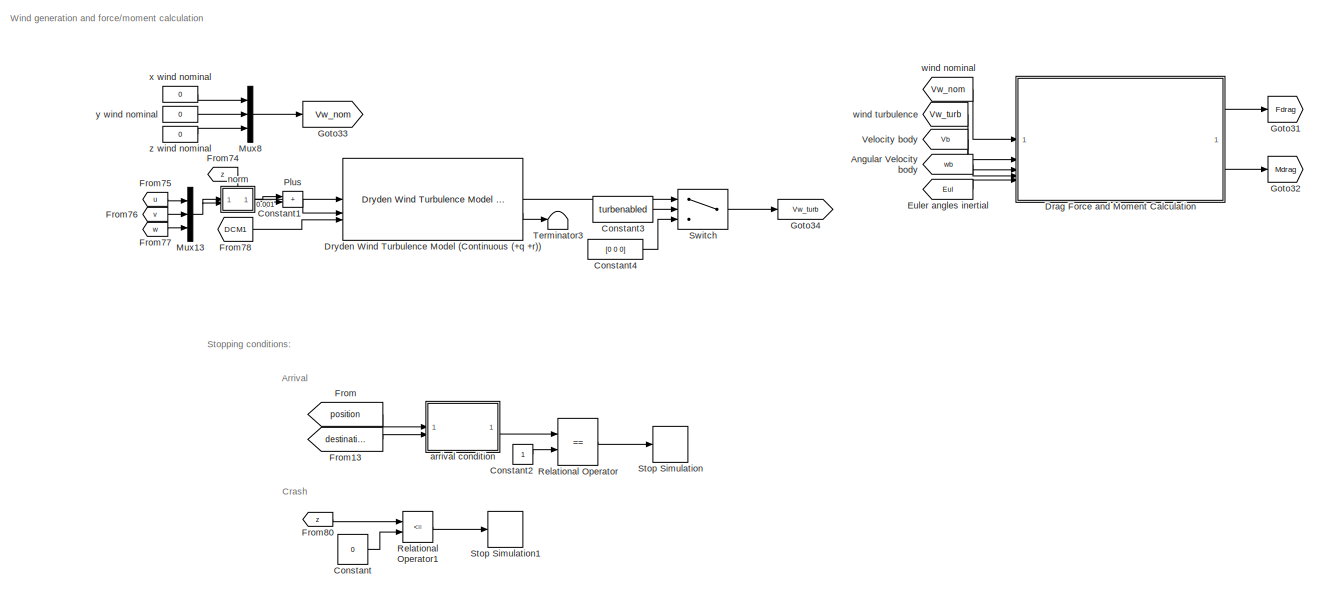
[diagram: root canvas - part 1/5, top left region]
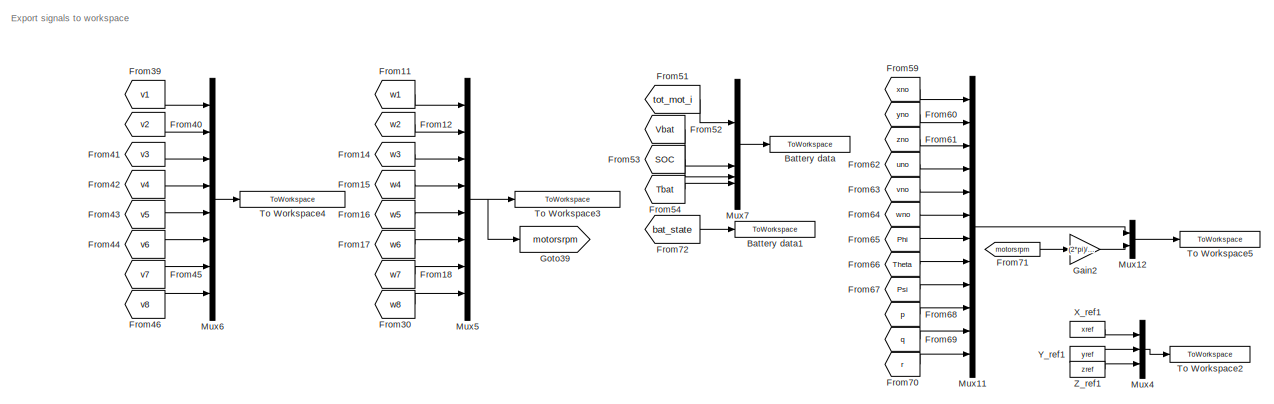
[diagram: root canvas - part 2/5, top center region]
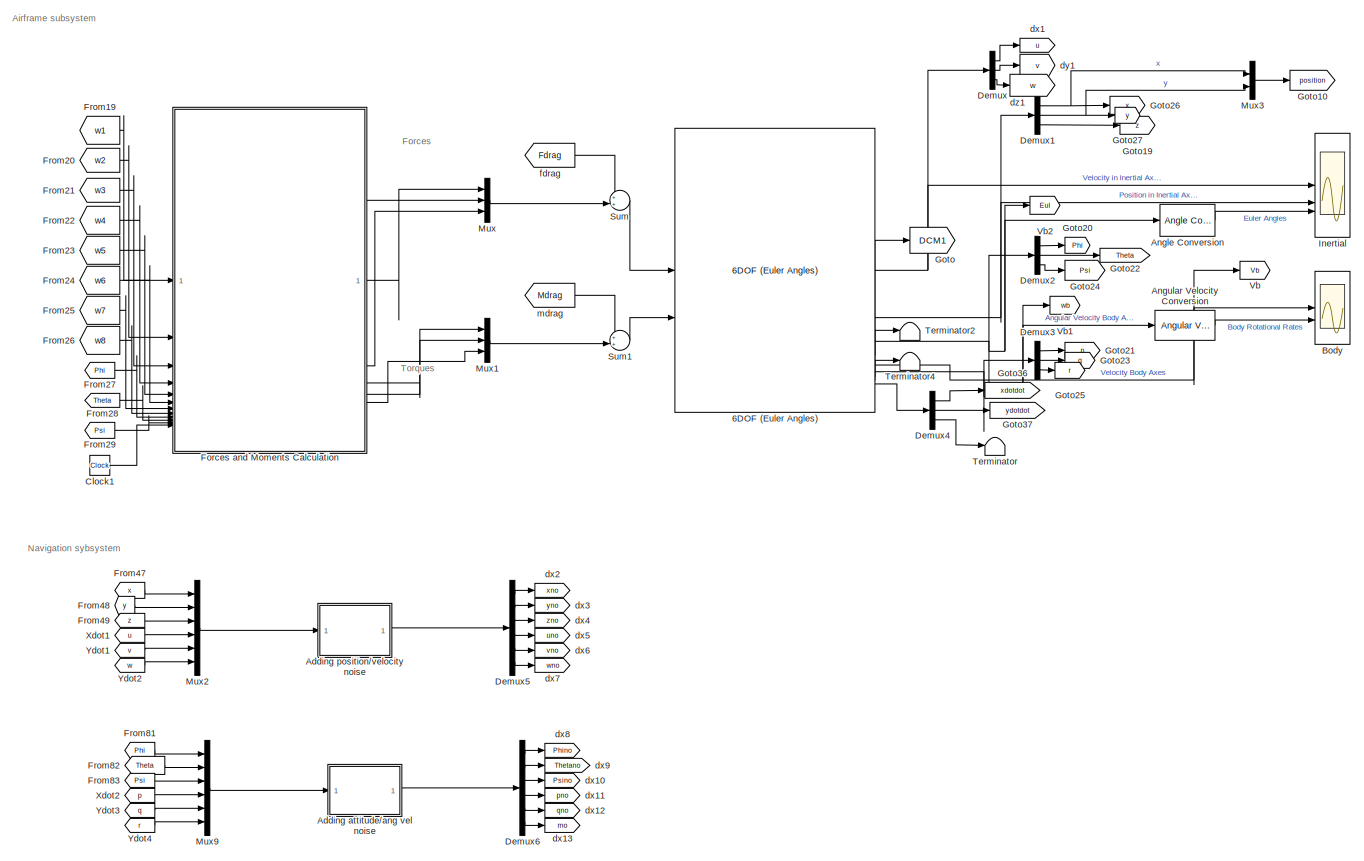
[diagram: root canvas - part 3/5, bottom right region]
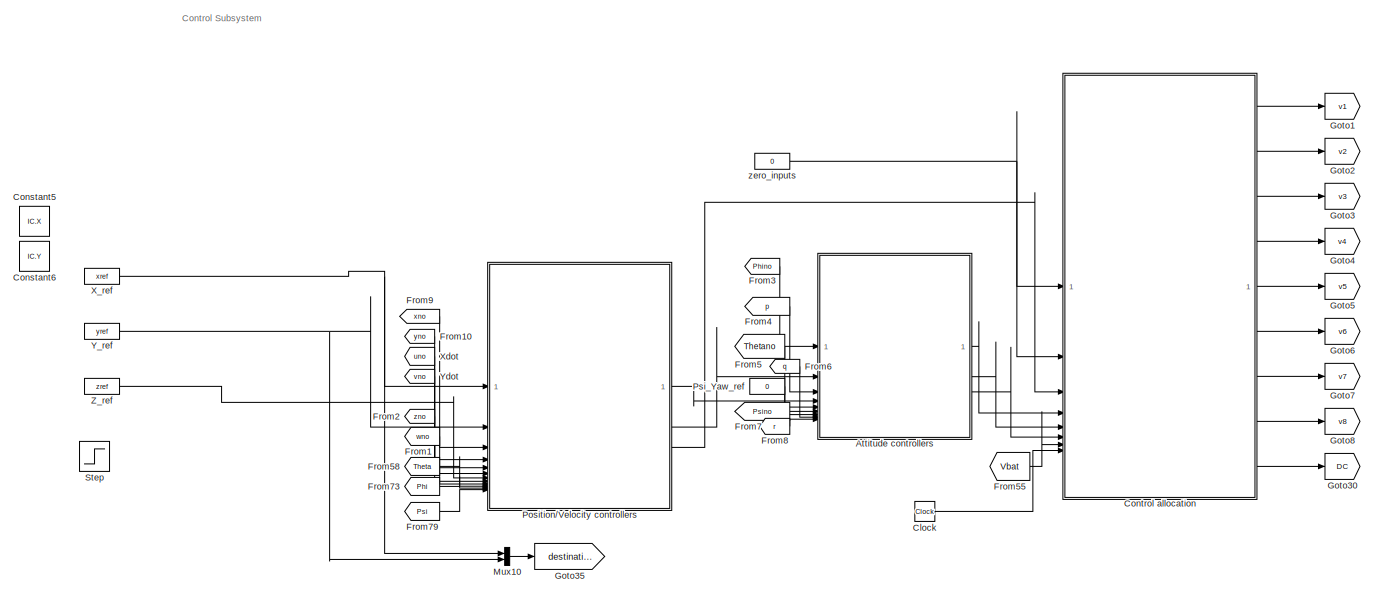
[diagram: root canvas - part 4/5, middle left region]
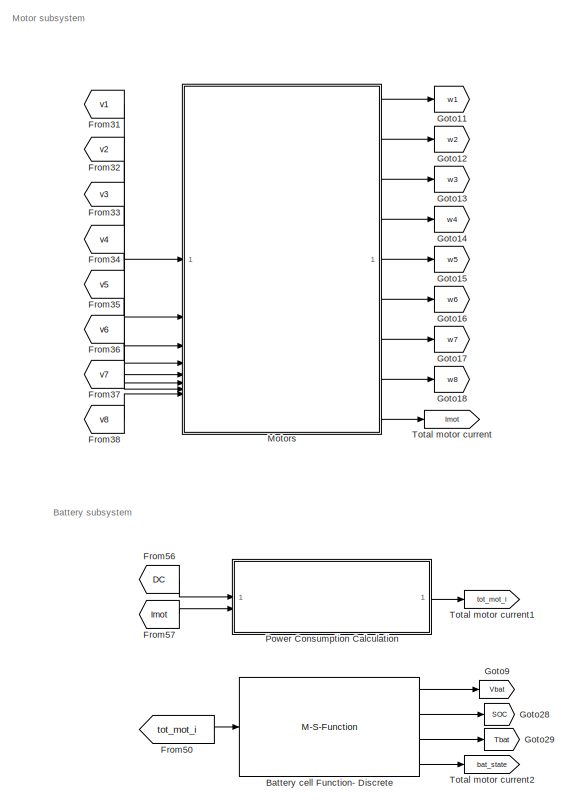
[diagram: root canvas - part 5/5, bottom center region]
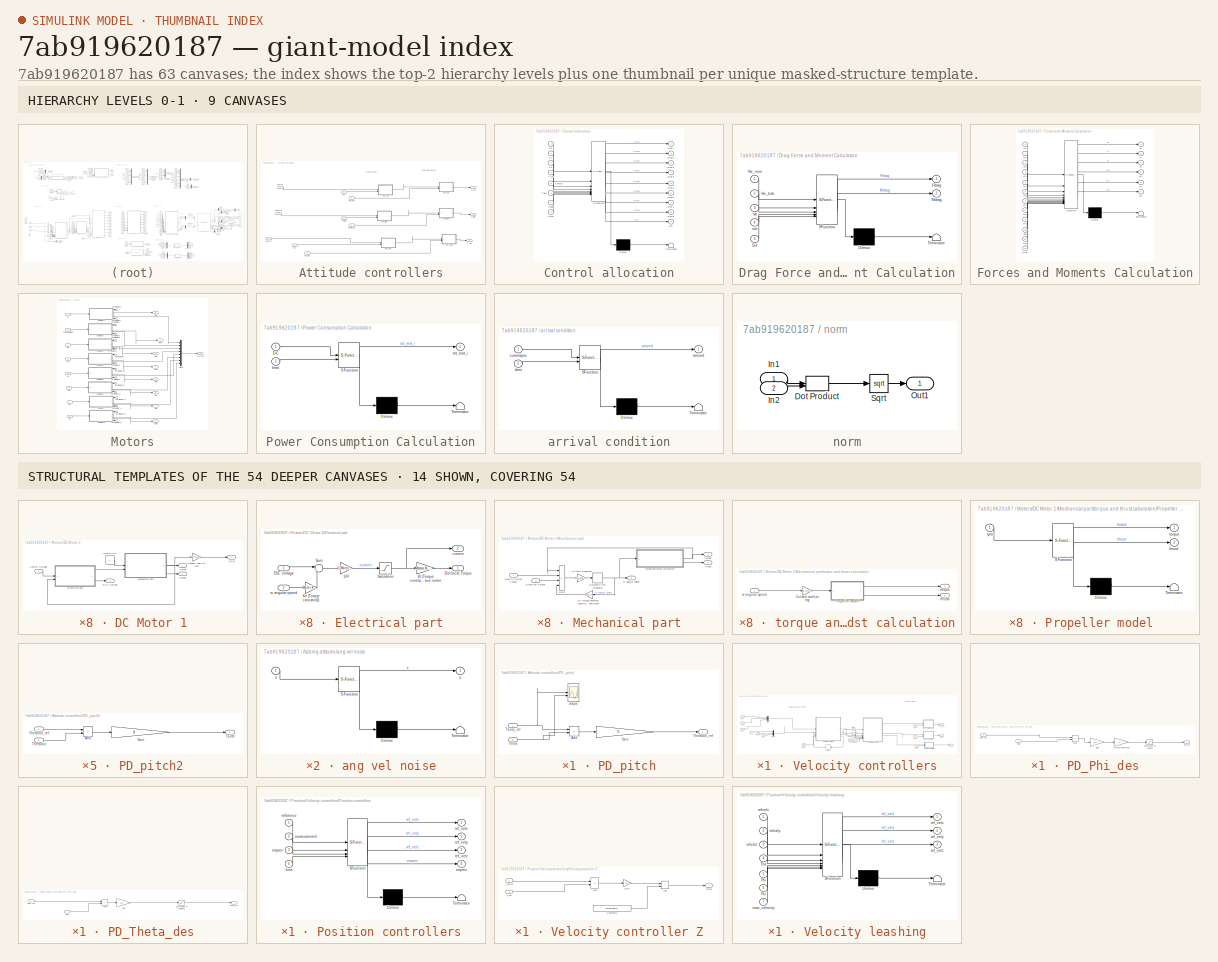
[diagram: thumbnail index - top-2 hierarchy levels (9 canvases) + 14 structural-template representatives of the remaining 54 canvases]
MODEL slx_7ab919620187
KIND model
CONFIG AbsTol = auto
CONFIG EnableMultiTasking = off
CONFIG FixedStep = auto
CONFIG MaxStep = auto
CONFIG MinStep = auto
CONFIG RelTol = 1e-3
CONFIG SampleTimeConstraint = Unconstrained
CONFIG SolverName = VariableStepAuto
CONFIG StartTime = 0.0
CONFIG StopTime = stoptimetotal
BLOCK [Reference] 6DOF (Euler Angles)  REF=shared6dof/6DOF (Euler Angles)
  SourceBlock = shared6dof/6DOF (Euler Angles)
  SourceType = 6DOF EoM (Body Axis)
BLOCK [SubSystem] Adding attitude//ang vel noise
  ErrorFcn = Stateflow.Translate.translate
  PermitHierarchicalResolution = ExplicitOnly
  SFBlockType = MATLAB Function
  SystemSampleTime = octomodel.sampletime
  TreatAsAtomicUnit = on
BLOCK [Demux] Adding attitude//ang vel noise/ Demux 
  Outputs = 1
BLOCK [S-Function] Adding attitude//ang vel noise/ SFunction 
  EnableBusSupport = off
  FunctionName = sf_sfun
  PortCounts = [1 2]
  SFcnIsStateOwnerBlock = off
  SFunctionDeploymentMode = off
  Tag = Stateflow S-Function 13
BLOCK [Terminator] Adding attitude//ang vel noise/ Terminator 
BLOCK [Inport] Adding attitude//ang vel noise/u
BLOCK [Outport] Adding attitude//ang vel noise/y
BLOCK [SubSystem] Adding position//velocity noise
  ErrorFcn = Stateflow.Translate.translate
  PermitHierarchicalResolution = ExplicitOnly
  SFBlockType = MATLAB Function
  SystemSampleTime = octomodel.sampletime
  TreatAsAtomicUnit = on
BLOCK [Demux] Adding position//velocity noise/ Demux 
  Outputs = 1
BLOCK [S-Function] Adding position//velocity noise/ SFunction 
  EnableBusSupport = off
  FunctionName = sf_sfun
  PortCounts = [1 2]
  SFcnIsStateOwnerBlock = off
  SFunctionDeploymentMode = off
  Tag = Stateflow S-Function 16
BLOCK [Terminator] Adding position//velocity noise/ Terminator 
BLOCK [Inport] Adding position//velocity noise/u
BLOCK [Outport] Adding position//velocity noise/y
BLOCK [Reference] Angle Conversion  REF=aerolibconvert2/Angle Conversion
  SourceBlock = aerolibconvert2/Angle Conversion
  SourceType = Angle Conversion
BLOCK [Reference] Angular Velocity Conversion  REF=aerolibconvert2/Angular Velocity
Conversion
  SourceBlock = aerolibconvert2/Angular Velocity\nConversion
  SourceType = Angular Velocity Conversion
BLOCK [From] Angular Velocity body
  GotoTag = wb
BLOCK [SubSystem] Attitude controllers
BLOCK [SubSystem] Attitude controllers/PD_pitch
BLOCK [Sum] Attitude controllers/PD_pitch/Add
  IconShape = rectangular
  Inputs = +-
BLOCK [Gain] Attitude controllers/PD_pitch/Gain
  Gain = 5
BLOCK [Scope] Attitude controllers/PD_pitch/Scope
  Floating = off
  NumInputPorts = 2
  ScopeSpecificationString = Simulink.scopes.TimeScopeBlockCfg('CurrentConfiguration', extmgr.ConfigurationSet(extmgr.Configuration('Core','General UI',true),extmgr.Configuration('Core','Source UI',true),extmgr.Configuration('Sources','WiredSimulink',true,'DataLoggingVariableName','ScopeData1'),extmgr.Configuration('Visuals','Time Domain',true,'SerializedDisplays',{struct('MinYLimReal','-0.04923','MaxYLimReal','0.44304','YLab...<+1449ch>
BLOCK [Inport] Attitude controllers/PD_pitch/Theta
  Port = 2
BLOCK [Inport] Attitude controllers/PD_pitch/Theta_ref
BLOCK [Outport] Attitude controllers/PD_pitch/Thetadot_ref
  VectorParamsAs1DForOutWhenUnconnected = off
BLOCK [SubSystem] Attitude controllers/PD_pitch2
BLOCK [Sum] Attitude controllers/PD_pitch2/Add
  IconShape = rectangular
  Inputs = +-
BLOCK [Gain] Attitude controllers/PD_pitch2/Gain
  Gain = 8
BLOCK [Inport] Attitude controllers/PD_pitch2/Thetadot
  Port = 2
BLOCK [Inport] Attitude controllers/PD_pitch2/Thetadot_ref
BLOCK [Outport] Attitude controllers/PD_pitch2/Tpitch
  VectorParamsAs1DForOutWhenUnconnected = off
BLOCK [SubSystem] Attitude controllers/PD_roll
BLOCK [Sum] Attitude controllers/PD_roll/Add
  IconShape = rectangular
  Inputs = +-
BLOCK [Gain] Attitude controllers/PD_roll/Gain
  Gain = 8
BLOCK [Inport] Attitude controllers/PD_roll/Phi_dot
  Port = 2
BLOCK [Inport] Attitude controllers/PD_roll/Phidot_ref
BLOCK [Outport] Attitude controllers/PD_roll/Troll
  VectorParamsAs1DForOutWhenUnconnected = off
BLOCK [SubSystem] Attitude controllers/PD_roll1
BLOCK [Sum] Attitude controllers/PD_roll1/Add
  IconShape = rectangular
  Inputs = +-
BLOCK [Gain] Attitude controllers/PD_roll1/Gain
  Gain = 5
BLOCK [Inport] Attitude controllers/PD_roll1/Phi
  Port = 2
BLOCK [Inport] Attitude controllers/PD_roll1/Phi_ref
BLOCK [Outport] Attitude controllers/PD_roll1/Phidot_ref
  VectorParamsAs1DForOutWhenUnconnected = off
BLOCK [SubSystem] Attitude controllers/PD_yaw
BLOCK [Sum] Attitude controllers/PD_yaw/Add
  IconShape = rectangular
  Inputs = +-
BLOCK [Gain] Attitude controllers/PD_yaw/Gain
  Gain = 5
BLOCK [Inport] Attitude controllers/PD_yaw/Psi
  Port = 2
BLOCK [Inport] Attitude controllers/PD_yaw/Psi_ref
BLOCK [Outport] Attitude controllers/PD_yaw/Psidot_ref
  VectorParamsAs1DForOutWhenUnconnected = off
BLOCK [SubSystem] Attitude controllers/PD_yaw2
BLOCK [Sum] Attitude controllers/PD_yaw2/Add
  IconShape = rectangular
  Inputs = +-
BLOCK [Gain] Attitude controllers/PD_yaw2/Gain
  Gain = 8
BLOCK [Inport] Attitude controllers/PD_yaw2/Psidot
  Port = 2
BLOCK [Inport] Attitude controllers/PD_yaw2/Psidot_ref
BLOCK [Outport] Attitude controllers/PD_yaw2/Tyaw
  VectorParamsAs1DForOutWhenUnconnected = off
BLOCK [Inport] Attitude controllers/Phi
BLOCK [Inport] Attitude controllers/Phi_dot
  Port = 3
BLOCK [Inport] Attitude controllers/Phi_ref
  Port = 2
BLOCK [Inport] Attitude controllers/Psi
  Port = 8
BLOCK [Inport] Attitude controllers/Psi_dot
  Port = 9
BLOCK [Inport] Attitude controllers/Psi_ref
  Port = 7
BLOCK [Outport] Attitude controllers/T_pitch
  Port = 2
  VectorParamsAs1DForOutWhenUnconnected = off
BLOCK [Outport] Attitude controllers/T_roll
  VectorParamsAs1DForOutWhenUnconnected = off
BLOCK [Outport] Attitude controllers/T_yaw
  Port = 3
  VectorParamsAs1DForOutWhenUnconnected = off
BLOCK [Inport] Attitude controllers/Theta
  Port = 5
BLOCK [Inport] Attitude controllers/Theta_dot
  Port = 6
BLOCK [Inport] Attitude controllers/Theta_ref
  Port = 4
BLOCK [M-S-Function] Battery cell Function- Discrete
  FunctionName = batteryModel_Sfcn
  Parameters = battery
BLOCK [ToWorkspace] Battery data
  FixptAsFi = on
  MaxDataPoints = inf
  SampleTime = battery.sampleTime
  SaveFormat = Timeseries
  VariableName = battery_data
BLOCK [ToWorkspace] Battery data1
  FixptAsFi = on
  MaxDataPoints = inf
  SampleTime = battery.sampleTime
  SaveFormat = Timeseries
  VariableName = battery_variables
BLOCK [Scope] Body
  Floating = off
  NumInputPorts = 2
  ScopeSpecificationString = Simulink.scopes.TimeScopeBlockCfg('CurrentConfiguration', extmgr.ConfigurationSet(extmgr.Configuration('Core','General UI',true),extmgr.Configuration('Core','Source UI',true),extmgr.Configuration('Sources','WiredSimulink',true,'DataLoggingSaveFormat','StructureWithTime','DataLoggingLimitDataPoints',true,'DataLoggingDecimation','1','DataLoggingDecimateData',true,'DataLoggingVariableName','ScopeData...<+2537ch>
BLOCK [Clock] Clock
BLOCK [Clock] Clock1
BLOCK [Constant] Constant
  Value = 0
BLOCK [Constant] Constant1
  Value = 0.001
BLOCK [Constant] Constant2
BLOCK [Constant] Constant3
  Value = turbenabled
BLOCK [Constant] Constant4
  Value = [0 0 0]
BLOCK [Constant] Constant5
  Value = IC.X
BLOCK [Constant] Constant6
  Value = IC.Y
BLOCK [SubSystem] Control allocation
  ErrorFcn = Stateflow.Translate.translate
  PermitHierarchicalResolution = ExplicitOnly
  SFBlockType = MATLAB Function
  TreatAsAtomicUnit = on
BLOCK [Demux] Control allocation/ Demux 
  Outputs = 1
BLOCK [S-Function] Control allocation/ SFunction 
  EnableBusSupport = off
  FunctionName = sf_sfun
  PortCounts = [8 10]
  SFcnIsStateOwnerBlock = off
  SFunctionDeploymentMode = off
  Tag = Stateflow S-Function 8
BLOCK [Terminator] Control allocation/ Terminator 
BLOCK [Outport] Control allocation/DC
  Port = 9
BLOCK [Inport] Control allocation/Fx
BLOCK [Inport] Control allocation/Fy
  Port = 2
BLOCK [Inport] Control allocation/Fz
  Port = 3
BLOCK [Inport] Control allocation/Tpitch
  Port = 5
BLOCK [Inport] Control allocation/Troll
  Port = 4
BLOCK [Inport] Control allocation/Tyaw
  Port = 6
BLOCK [Inport] Control allocation/Vbat
  Port = 7
BLOCK [Inport] Control allocation/time
  Port = 8
BLOCK [Outport] Control allocation/wref1
  VectorParamsAs1DForOutWhenUnconnected = off
BLOCK [Outport] Control allocation/wref2
  Port = 2
  VectorParamsAs1DForOutWhenUnconnected = off
BLOCK [Outport] Control allocation/wref3
  Port = 3
  VectorParamsAs1DForOutWhenUnconnected = off
BLOCK [Outport] Control allocation/wref4
  Port = 4
  VectorParamsAs1DForOutWhenUnconnected = off
BLOCK [Outport] Control allocation/wref5
  Port = 5
  VectorParamsAs1DForOutWhenUnconnected = off
BLOCK [Outport] Control allocation/wref6
  Port = 6
  VectorParamsAs1DForOutWhenUnconnected = off
BLOCK [Outport] Control allocation/wref7
  Port = 7
  VectorParamsAs1DForOutWhenUnconnected = off
BLOCK [Outport] Control allocation/wref8
  Port = 8
  VectorParamsAs1DForOutWhenUnconnected = off
BLOCK [Demux] Demux
  Outputs = 3
BLOCK [Demux] Demux1
  Outputs = 3
BLOCK [Demux] Demux2
  Outputs = 3
BLOCK [Demux] Demux3
  Outputs = 3
BLOCK [Demux] Demux4
  Outputs = 3
BLOCK [Demux] Demux5
  Outputs = 6
BLOCK [Demux] Demux6
  Outputs = 6
BLOCK [SubSystem] Drag Force and Moment Calculation
  ErrorFcn = Stateflow.Translate.translate
  PermitHierarchicalResolution = ExplicitOnly
  SFBlockType = MATLAB Function
  TreatAsAtomicUnit = on
BLOCK [Demux] Drag Force and Moment Calculation/ Demux 
  Outputs = 1
BLOCK [S-Function] Drag Force and Moment Calculation/ SFunction 
  EnableBusSupport = off
  FunctionName = sf_sfun
  Parameters = windspecs
  PortCounts = [5 3]
  SFcnIsStateOwnerBlock = off
  SFunctionDeploymentMode = off
  Tag = Stateflow S-Function 12
BLOCK [Terminator] Drag Force and Moment Calculation/ Terminator 
BLOCK [Inport] Drag Force and Moment Calculation/Eul
  Port = 5
BLOCK [Outport] Drag Force and Moment Calculation/Fdrag
  VectorParamsAs1DForOutWhenUnconnected = off
BLOCK [Outport] Drag Force and Moment Calculation/Mdrag
  Port = 2
BLOCK [Inport] Drag Force and Moment Calculation/Vb
  Port = 3
BLOCK [Inport] Drag Force and Moment Calculation/Vw_nom
BLOCK [Inport] Drag Force and Moment Calculation/Vw_turb
  Port = 2
BLOCK [Inport] Drag Force and Moment Calculation/wb
  Port = 4
BLOCK [Reference] Dryden Wind Turbulence Model (Continuous (+q +r))  REF=aerolibwind2/Dryden Wind Turbulence Model 
(Continuous (+q -r))
  LibrarySourceBlock = aerolibwind2/Dryden Wind Turbulence Model \n(Continuous (+q +r))
  SourceBlock = aerolibwind2/Dryden Wind Turbulence Model \n(Continuous (+q -r))
  SourceType = Wind Turbulence Model
BLOCK [From] Euler angles inertial
  GotoTag = Eul
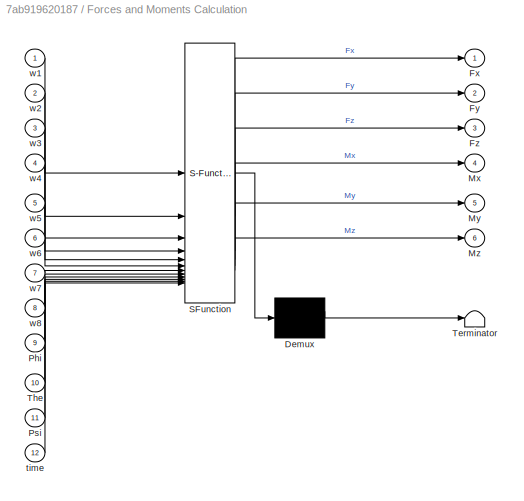
BLOCK [SubSystem] Forces and Moments Calculation
  ErrorFcn = Stateflow.Translate.translate
  PermitHierarchicalResolution = ExplicitOnly
  SFBlockType = MATLAB Function
  TreatAsAtomicUnit = on
BLOCK [Demux] Forces and Moments Calculation/ Demux 
  Outputs = 1
BLOCK [S-Function] Forces and Moments Calculation/ SFunction 
  EnableBusSupport = off
  FunctionName = sf_sfun
  PortCounts = [12 7]
  SFcnIsStateOwnerBlock = off
  SFunctionDeploymentMode = off
  Tag = Stateflow S-Function 1
BLOCK [Terminator] Forces and Moments Calculation/ Terminator 
BLOCK [Outport] Forces and Moments Calculation/Fx
  VectorParamsAs1DForOutWhenUnconnected = off
BLOCK [Outport] Forces and Moments Calculation/Fy
  Port = 2
  VectorParamsAs1DForOutWhenUnconnected = off
BLOCK [Outport] Forces and Moments Calculation/Fz
  Port = 3
  VectorParamsAs1DForOutWhenUnconnected = off
BLOCK [Outport] Forces and Moments Calculation/Mx
  Port = 4
  VectorParamsAs1DForOutWhenUnconnected = off
BLOCK [Outport] Forces and Moments Calculation/My
  Port = 5
  VectorParamsAs1DForOutWhenUnconnected = off
BLOCK [Outport] Forces and Moments Calculation/Mz
  Port = 6
  VectorParamsAs1DForOutWhenUnconnected = off
BLOCK [Inport] Forces and Moments Calculation/Phi
  Port = 9
BLOCK [Inport] Forces and Moments Calculation/Psi
  Port = 11
BLOCK [Inport] Forces and Moments Calculation/The
  Port = 10
BLOCK [Inport] Forces and Moments Calculation/time
  Port = 12
BLOCK [Inport] Forces and Moments Calculation/w1
BLOCK [Inport] Forces and Moments Calculation/w2
  Port = 2
BLOCK [Inport] Forces and Moments Calculation/w3
  Port = 3
BLOCK [Inport] Forces and Moments Calculation/w4
  Port = 4
BLOCK [Inport] Forces and Moments Calculation/w5
  Port = 5
BLOCK [Inport] Forces and Moments Calculation/w6
  Port = 6
BLOCK [Inport] Forces and Moments Calculation/w7
  Port = 7
BLOCK [Inport] Forces and Moments Calculation/w8
  Port = 8
BLOCK [From] From
  GotoTag = position
BLOCK [From] From1
  GotoTag = wno
BLOCK [From] From10
  GotoTag = yno
BLOCK [From] From11
  GotoTag = w1
BLOCK [From] From12
  GotoTag = w2
BLOCK [From] From13
  GotoTag = destination
BLOCK [From] From14
  GotoTag = w3
BLOCK [From] From15
  GotoTag = w4
BLOCK [From] From16
  GotoTag = w5
BLOCK [From] From17
  GotoTag = w6
BLOCK [From] From18
  GotoTag = w7
BLOCK [From] From19
  GotoTag = w1
BLOCK [From] From2
  GotoTag = zno
BLOCK [From] From20
  GotoTag = w2
BLOCK [From] From21
  GotoTag = w3
BLOCK [From] From22
  GotoTag = w4
BLOCK [From] From23
  GotoTag = w5
BLOCK [From] From24
  GotoTag = w6
BLOCK [From] From25
  GotoTag = w7
BLOCK [From] From26
  GotoTag = w8
BLOCK [From] From27
  GotoTag = Phi
BLOCK [From] From28
  GotoTag = Theta
BLOCK [From] From29
  GotoTag = Psi
BLOCK [From] From3
  GotoTag = Phino
BLOCK [From] From30
  GotoTag = w8
BLOCK [From] From31
  GotoTag = v1
BLOCK [From] From32
  GotoTag = v2
BLOCK [From] From33
  GotoTag = v3
BLOCK [From] From34
  GotoTag = v4
BLOCK [From] From35
  GotoTag = v5
BLOCK [From] From36
  GotoTag = v6
BLOCK [From] From37
  GotoTag = v7
BLOCK [From] From38
  GotoTag = v8
BLOCK [From] From39
  GotoTag = v1
BLOCK [From] From4
  GotoTag = p
BLOCK [From] From40
  GotoTag = v2
BLOCK [From] From41
  GotoTag = v3
BLOCK [From] From42
  GotoTag = v4
BLOCK [From] From43
  GotoTag = v5
BLOCK [From] From44
  GotoTag = v6
BLOCK [From] From45
  GotoTag = v7
BLOCK [From] From46
  GotoTag = v8
BLOCK [From] From47
  GotoTag = x
BLOCK [From] From48
  GotoTag = y
BLOCK [From] From49
  GotoTag = z
BLOCK [From] From5
  GotoTag = Thetano
BLOCK [From] From50
  GotoTag = tot_mot_i
BLOCK [From] From51
  GotoTag = tot_mot_i
BLOCK [From] From52
  GotoTag = Vbat
BLOCK [From] From53
  GotoTag = SOC
BLOCK [From] From54
  GotoTag = Tbat
BLOCK [From] From55
  GotoTag = Vbat
BLOCK [From] From56
  GotoTag = DC
BLOCK [From] From57
  GotoTag = Imot
BLOCK [From] From58
  GotoTag = Theta
BLOCK [From] From59
  GotoTag = xno
BLOCK [From] From6
  GotoTag = q
BLOCK [From] From60
  GotoTag = yno
BLOCK [From] From61
  GotoTag = zno
BLOCK [From] From62
  GotoTag = uno
BLOCK [From] From63
  GotoTag = vno
BLOCK [From] From64
  GotoTag = wno
BLOCK [From] From65
  GotoTag = Phi
BLOCK [From] From66
  GotoTag = Theta
BLOCK [From] From67
  GotoTag = Psi
BLOCK [From] From68
  GotoTag = p
BLOCK [From] From69
  GotoTag = q
BLOCK [From] From7
  GotoTag = Psino
BLOCK [From] From70
  GotoTag = r
BLOCK [From] From71
  GotoTag = motorsrpm
BLOCK [From] From72
  GotoTag = bat_state
BLOCK [From] From73
  GotoTag = Phi
BLOCK [From] From74
  GotoTag = z
BLOCK [From] From75
  GotoTag = u
BLOCK [From] From76
  GotoTag = v
BLOCK [From] From77
  GotoTag = w
BLOCK [From] From78
  GotoTag = DCM1
  TagVisibility = global
BLOCK [From] From79
  GotoTag = Psi
BLOCK [From] From8
  GotoTag = r
BLOCK [From] From80
  GotoTag = z
BLOCK [From] From81
  GotoTag = Phi
BLOCK [From] From82
  GotoTag = Theta
BLOCK [From] From83
  GotoTag = Psi
BLOCK [From] From9
  GotoTag = xno
BLOCK [Gain] Gain2
  Gain = (2*pi)/60
BLOCK [Goto] Goto
  GotoTag = DCM1
  TagVisibility = global
BLOCK [Goto] Goto1
  GotoTag = v1
BLOCK [Goto] Goto10
  GotoTag = position
BLOCK [Goto] Goto11
  GotoTag = w1
BLOCK [Goto] Goto12
  GotoTag = w2
BLOCK [Goto] Goto13
  GotoTag = w3
BLOCK [Goto] Goto14
  GotoTag = w4
BLOCK [Goto] Goto15
  GotoTag = w5
BLOCK [Goto] Goto16
  GotoTag = w6
BLOCK [Goto] Goto17
  GotoTag = w7
BLOCK [Goto] Goto18
  GotoTag = w8
BLOCK [Goto] Goto19
  GotoTag = z
BLOCK [Goto] Goto2
  GotoTag = v2
BLOCK [Goto] Goto20
  GotoTag = Phi
BLOCK [Goto] Goto21
  GotoTag = p
BLOCK [Goto] Goto22
  GotoTag = Theta
BLOCK [Goto] Goto23
  GotoTag = q
BLOCK [Goto] Goto24
  GotoTag = Psi
BLOCK [Goto] Goto25
  GotoTag = r
BLOCK [Goto] Goto26
  GotoTag = x
BLOCK [Goto] Goto27
  GotoTag = y
BLOCK [Goto] Goto28
  GotoTag = SOC
BLOCK [Goto] Goto29
  GotoTag = Tbat
BLOCK [Goto] Goto3
  GotoTag = v3
BLOCK [Goto] Goto30
  GotoTag = DC
BLOCK [Goto] Goto31
  GotoTag = Fdrag
BLOCK [Goto] Goto32
  GotoTag = Mdrag
BLOCK [Goto] Goto33
  GotoTag = Vw_nom
BLOCK [Goto] Goto34
  GotoTag = Vw_turb
BLOCK [Goto] Goto35
  GotoTag = destination
BLOCK [Goto] Goto36
  GotoTag = xdotdot
BLOCK [Goto] Goto37
  GotoTag = ydotdot
BLOCK [Goto] Goto39
  GotoTag = motorsrpm
BLOCK [Goto] Goto4
  GotoTag = v4
BLOCK [Goto] Goto5
  GotoTag = v5
BLOCK [Goto] Goto6
  GotoTag = v6
BLOCK [Goto] Goto7
  GotoTag = v7
BLOCK [Goto] Goto8
  GotoTag = v8
BLOCK [Goto] Goto9
  GotoTag = Vbat
BLOCK [Scope] Inertial
  Floating = off
  NumInputPorts = 3
  ScopeSpecificationString = Simulink.scopes.TimeScopeBlockCfg('CurrentConfiguration', extmgr.ConfigurationSet(extmgr.Configuration('Core','General UI',true),extmgr.Configuration('Core','Source UI',true),extmgr.Configuration('Sources','WiredSimulink',true,'DataLogging',true,'DataLoggingVariableName','ScopeData6','DataLoggingSaveFormat','StructureWithTime','DataLoggingDecimation','1','DataLoggingDecimateData',true),extmgr.Conf...<+3459ch>
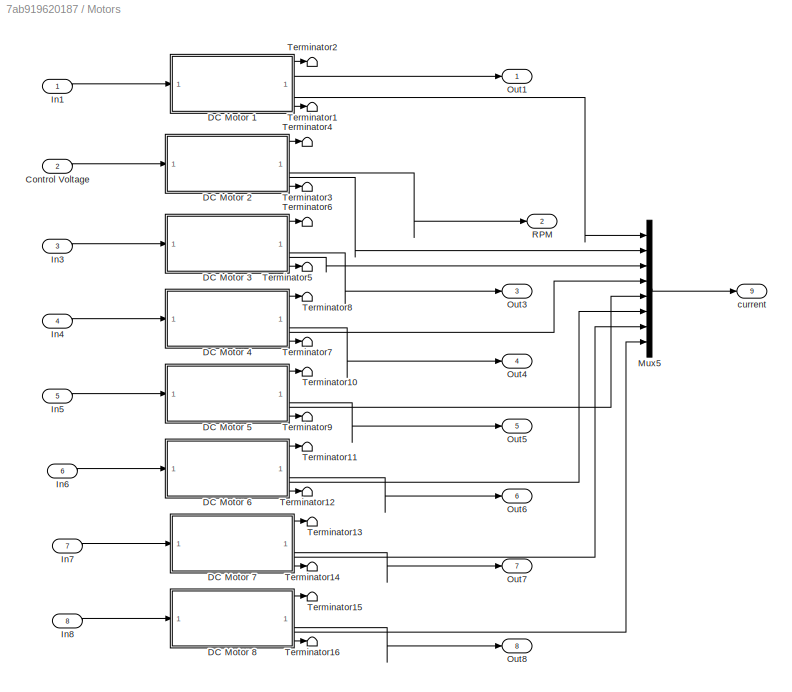
BLOCK [SubSystem] Motors
BLOCK [Inport] Motors/Control  Voltage
  Port = 2
BLOCK [SubSystem] Motors/DC Motor 1
BLOCK [Inport] Motors/DC Motor 1/Control Voltage
BLOCK [Gain] Motors/DC Motor 1/Convert rad//s to rmp
  Gain = 60/(2*pi)
BLOCK [Outport] Motors/DC Motor 1/ESC Current
  Port = 3
  VectorParamsAs1DForOutWhenUnconnected = off
BLOCK [SubSystem] Motors/DC Motor 1/Electrical part
BLOCK [Gain] Motors/DC Motor 1/Electrical part/1//R
  Gain = 1/Motor.Req
BLOCK [Inport] Motors/DC Motor 1/Electrical part/ESC voltage
BLOCK [Outport] Motors/DC Motor 1/Electrical part/Electrical Torque
  VectorParamsAs1DForOutWhenUnconnected = off
BLOCK [Gain] Motors/DC Motor 1/Electrical part/Ke (Torque constant)1
  Gain = Motor.Ke_eq
BLOCK [Gain] Motors/DC Motor 1/Electrical part/Kt (Torque constant) Kt=Ke for an ideal square wave motor
  Gain = Motor.Ke_eq
BLOCK [Saturate] Motors/DC Motor 1/Electrical part/Saturation
  LowerLimit = 0
  UpperLimit = 38
BLOCK [Sum] Motors/DC Motor 1/Electrical part/Sum
  Inputs = |+-
BLOCK [Outport] Motors/DC Motor 1/Electrical part/current
  Port = 2
  VectorParamsAs1DForOutWhenUnconnected = off
BLOCK [Inport] Motors/DC Motor 1/Electrical part/w angular speed
  Port = 2
BLOCK [SubSystem] Motors/DC Motor 1/Mechanical part
BLOCK [Gain] Motors/DC Motor 1/Mechanical part/1//J Inertia constant
  Gain = 1/Motor.J
BLOCK [Gain] Motors/DC Motor 1/Mechanical part/Df viscous damping coefficient Dynamic Friction coefficient 
  Gain = Motor.Df
BLOCK [DiscreteIntegrator] Motors/DC Motor 1/Mechanical part/Discrete-Time Integrator
  ICPrevOutput = DiscIntNeverNeededParam
  ICPrevScaledInput = DiscIntNeverNeededParam
  InitialCondition = IC.w1
  InitialConditionSetting = Auto
  SampleTime = octomodel.sampletime
  gainval = 1
BLOCK [Inport] Motors/DC Motor 1/Mechanical part/Electrical Torque
  Port = 2
BLOCK [Inport] Motors/DC Motor 1/Mechanical part/Static Friction Torque
BLOCK [Sum] Motors/DC Motor 1/Mechanical part/Sum1
  IconShape = rectangular
  Inputs = --+-
BLOCK [Outport] Motors/DC Motor 1/Mechanical part/Thrust
  Port = 2
  VectorParamsAs1DForOutWhenUnconnected = off
BLOCK [Outport] Motors/DC Motor 1/Mechanical part/Torque
  Port = 3
  VectorParamsAs1DForOutWhenUnconnected = off
BLOCK [SubSystem] Motors/DC Motor 1/Mechanical part/torque and thrust calculation
BLOCK [Gain] Motors/DC Motor 1/Mechanical part/torque and thrust calculation/Convert rad//s to rmp
  Gain = 60/(2*pi)
BLOCK [SubSystem] Motors/DC Motor 1/Mechanical part/torque and thrust calculation/Propeller model 
  ErrorFcn = Stateflow.Translate.translate
  PermitHierarchicalResolution = ExplicitOnly
  SFBlockType = MATLAB Function
  TreatAsAtomicUnit = on
BLOCK [Demux] Motors/DC Motor 1/Mechanical part/torque and thrust calculation/Propeller model / Demux 
  Outputs = 1
BLOCK [S-Function] Motors/DC Motor 1/Mechanical part/torque and thrust calculation/Propeller model / SFunction 
  EnableBusSupport = off
  FunctionName = sf_sfun
  PortCounts = [1 3]
  SFcnIsStateOwnerBlock = off
  SFunctionDeploymentMode = off
  Tag = Stateflow S-Function 29
BLOCK [Terminator] Motors/DC Motor 1/Mechanical part/torque and thrust calculation/Propeller model / Terminator 
BLOCK [Inport] Motors/DC Motor 1/Mechanical part/torque and thrust calculation/Propeller model /rpm
BLOCK [Outport] Motors/DC Motor 1/Mechanical part/torque and thrust calculation/Propeller model /thrust
  Port = 2
  VectorParamsAs1DForOutWhenUnconnected = off
BLOCK [Outport] Motors/DC Motor 1/Mechanical part/torque and thrust calculation/Propeller model /torque
  VectorParamsAs1DForOutWhenUnconnected = off
BLOCK [Outport] Motors/DC Motor 1/Mechanical part/torque and thrust calculation/thrusth
  Port = 2
  VectorParamsAs1DForOutWhenUnconnected = off
BLOCK [Outport] Motors/DC Motor 1/Mechanical part/torque and thrust calculation/torque
  VectorParamsAs1DForOutWhenUnconnected = off
BLOCK [Inport] Motors/DC Motor 1/Mechanical part/torque and thrust calculation/w angular speed
BLOCK [Outport] Motors/DC Motor 1/Mechanical part/w angular speed
  VectorParamsAs1DForOutWhenUnconnected = off
BLOCK [Outport] Motors/DC Motor 1/RPM
  Port = 2
  VectorParamsAs1DForOutWhenUnconnected = off
BLOCK [Constant] Motors/DC Motor 1/StaticTfric
  Value = 0
BLOCK [Outport] Motors/DC Motor 1/Thrust
  VectorParamsAs1DForOutWhenUnconnected = off
BLOCK [Outport] Motors/DC Motor 1/Torque
  Port = 4
  VectorParamsAs1DForOutWhenUnconnected = off
BLOCK [SubSystem] Motors/DC Motor 2
BLOCK [Inport] Motors/DC Motor 2/Control Voltage
BLOCK [Gain] Motors/DC Motor 2/Convert rad//s to rmp
  Gain = 60/(2*pi)
BLOCK [Outport] Motors/DC Motor 2/ESC Current
  Port = 3
  VectorParamsAs1DForOutWhenUnconnected = off
BLOCK [SubSystem] Motors/DC Motor 2/Electrical part
BLOCK [Gain] Motors/DC Motor 2/Electrical part/1//R
  Gain = 1/Motor.Req
BLOCK [Inport] Motors/DC Motor 2/Electrical part/ESC voltage
BLOCK [Outport] Motors/DC Motor 2/Electrical part/Electrical Torque
  VectorParamsAs1DForOutWhenUnconnected = off
BLOCK [Gain] Motors/DC Motor 2/Electrical part/Ke (Torque constant)1
  Gain = Motor.Ke_eq
BLOCK [Gain] Motors/DC Motor 2/Electrical part/Kt (Torque constant) Kt=Ke for an ideal square wave motor
  Gain = Motor.Ke_eq
BLOCK [Saturate] Motors/DC Motor 2/Electrical part/Saturation
  LowerLimit = 0
  UpperLimit = 38
BLOCK [Sum] Motors/DC Motor 2/Electrical part/Sum
  Inputs = |+-
BLOCK [Outport] Motors/DC Motor 2/Electrical part/current
  Port = 2
  VectorParamsAs1DForOutWhenUnconnected = off
BLOCK [Inport] Motors/DC Motor 2/Electrical part/w angular speed
  Port = 2
BLOCK [SubSystem] Motors/DC Motor 2/Mechanical part
BLOCK [Gain] Motors/DC Motor 2/Mechanical part/1//J Inertia constant
  Gain = 1/Motor.J
BLOCK [Gain] Motors/DC Motor 2/Mechanical part/Df viscous damping coefficient Dynamic Friction coefficient 
  Gain = Motor.Df
BLOCK [DiscreteIntegrator] Motors/DC Motor 2/Mechanical part/Discrete-Time Integrator
  ICPrevOutput = DiscIntNeverNeededParam
  ICPrevScaledInput = DiscIntNeverNeededParam
  InitialCondition = IC.w2
  InitialConditionSetting = Auto
  SampleTime = octomodel.sampletime
  gainval = 1
BLOCK [Inport] Motors/DC Motor 2/Mechanical part/Electrical Torque
  Port = 2
BLOCK [Inport] Motors/DC Motor 2/Mechanical part/Static Friction Torque
BLOCK [Sum] Motors/DC Motor 2/Mechanical part/Sum1
  IconShape = rectangular
  Inputs = --+-
BLOCK [Outport] Motors/DC Motor 2/Mechanical part/Thrust
  Port = 2
  VectorParamsAs1DForOutWhenUnconnected = off
BLOCK [Outport] Motors/DC Motor 2/Mechanical part/Torque
  Port = 3
  VectorParamsAs1DForOutWhenUnconnected = off
BLOCK [SubSystem] Motors/DC Motor 2/Mechanical part/torque and thrust calculation
BLOCK [Gain] Motors/DC Motor 2/Mechanical part/torque and thrust calculation/Convert rad//s to rmp
  Gain = 60/(2*pi)
BLOCK [SubSystem] Motors/DC Motor 2/Mechanical part/torque and thrust calculation/Propeller model 
  ErrorFcn = Stateflow.Translate.translate
  PermitHierarchicalResolution = ExplicitOnly
  SFBlockType = MATLAB Function
  TreatAsAtomicUnit = on
BLOCK [Demux] Motors/DC Motor 2/Mechanical part/torque and thrust calculation/Propeller model / Demux 
  Outputs = 1
BLOCK [S-Function] Motors/DC Motor 2/Mechanical part/torque and thrust calculation/Propeller model / SFunction 
  EnableBusSupport = off
  FunctionName = sf_sfun
  PortCounts = [1 3]
  SFcnIsStateOwnerBlock = off
  SFunctionDeploymentMode = off
  Tag = Stateflow S-Function 2
BLOCK [Terminator] Motors/DC Motor 2/Mechanical part/torque and thrust calculation/Propeller model / Terminator 
BLOCK [Inport] Motors/DC Motor 2/Mechanical part/torque and thrust calculation/Propeller model /rpm
BLOCK [Outport] Motors/DC Motor 2/Mechanical part/torque and thrust calculation/Propeller model /thrust
  Port = 2
  VectorParamsAs1DForOutWhenUnconnected = off
BLOCK [Outport] Motors/DC Motor 2/Mechanical part/torque and thrust calculation/Propeller model /torque
  VectorParamsAs1DForOutWhenUnconnected = off
BLOCK [Outport] Motors/DC Motor 2/Mechanical part/torque and thrust calculation/thrusth
  Port = 2
  VectorParamsAs1DForOutWhenUnconnected = off
BLOCK [Outport] Motors/DC Motor 2/Mechanical part/torque and thrust calculation/torque
  VectorParamsAs1DForOutWhenUnconnected = off
BLOCK [Inport] Motors/DC Motor 2/Mechanical part/torque and thrust calculation/w angular speed
BLOCK [Outport] Motors/DC Motor 2/Mechanical part/w angular speed
  VectorParamsAs1DForOutWhenUnconnected = off
BLOCK [Outport] Motors/DC Motor 2/RPM
  Port = 2
  VectorParamsAs1DForOutWhenUnconnected = off
BLOCK [Constant] Motors/DC Motor 2/StaticTfric
  Value = 0
BLOCK [Outport] Motors/DC Motor 2/Thrust
  VectorParamsAs1DForOutWhenUnconnected = off
BLOCK [Outport] Motors/DC Motor 2/Torque
  Port = 4
  VectorParamsAs1DForOutWhenUnconnected = off
BLOCK [SubSystem] Motors/DC Motor 3
BLOCK [Inport] Motors/DC Motor 3/Control Voltage
BLOCK [Gain] Motors/DC Motor 3/Convert rad//s to rmp
  Gain = 60/(2*pi)
BLOCK [Outport] Motors/DC Motor 3/ESC Current
  Port = 3
  VectorParamsAs1DForOutWhenUnconnected = off
BLOCK [SubSystem] Motors/DC Motor 3/Electrical part
BLOCK [Gain] Motors/DC Motor 3/Electrical part/1//R
  Gain = 1/Motor.Req
BLOCK [Inport] Motors/DC Motor 3/Electrical part/ESC voltage
BLOCK [Outport] Motors/DC Motor 3/Electrical part/Electrical Torque
  VectorParamsAs1DForOutWhenUnconnected = off
BLOCK [Gain] Motors/DC Motor 3/Electrical part/Ke (Torque constant)1
  Gain = Motor.Ke_eq
BLOCK [Gain] Motors/DC Motor 3/Electrical part/Kt (Torque constant) Kt=Ke for an ideal square wave motor
  Gain = Motor.Ke_eq
BLOCK [Saturate] Motors/DC Motor 3/Electrical part/Saturation
  LowerLimit = 0
  UpperLimit = 38
BLOCK [Sum] Motors/DC Motor 3/Electrical part/Sum
  Inputs = |+-
BLOCK [Outport] Motors/DC Motor 3/Electrical part/current
  Port = 2
  VectorParamsAs1DForOutWhenUnconnected = off
BLOCK [Inport] Motors/DC Motor 3/Electrical part/w angular speed
  Port = 2
BLOCK [SubSystem] Motors/DC Motor 3/Mechanical part
BLOCK [Gain] Motors/DC Motor 3/Mechanical part/1//J Inertia constant
  Gain = 1/Motor.J
BLOCK [Gain] Motors/DC Motor 3/Mechanical part/Df viscous damping coefficient Dynamic Friction coefficient 
  Gain = Motor.Df
BLOCK [DiscreteIntegrator] Motors/DC Motor 3/Mechanical part/Discrete-Time Integrator
  ICPrevOutput = DiscIntNeverNeededParam
  ICPrevScaledInput = DiscIntNeverNeededParam
  InitialCondition = IC.w3
  InitialConditionSetting = Auto
  SampleTime = octomodel.sampletime
  gainval = 1
BLOCK [Inport] Motors/DC Motor 3/Mechanical part/Electrical Torque
  Port = 2
BLOCK [Inport] Motors/DC Motor 3/Mechanical part/Static Friction Torque
BLOCK [Sum] Motors/DC Motor 3/Mechanical part/Sum1
  IconShape = rectangular
  Inputs = --+-
BLOCK [Outport] Motors/DC Motor 3/Mechanical part/Thrust
  Port = 2
  VectorParamsAs1DForOutWhenUnconnected = off
BLOCK [Outport] Motors/DC Motor 3/Mechanical part/Torque
  Port = 3
  VectorParamsAs1DForOutWhenUnconnected = off
BLOCK [SubSystem] Motors/DC Motor 3/Mechanical part/torque and thrust calculation
BLOCK [Gain] Motors/DC Motor 3/Mechanical part/torque and thrust calculation/Convert rad//s to rmp
  Gain = 60/(2*pi)
BLOCK [SubSystem] Motors/DC Motor 3/Mechanical part/torque and thrust calculation/Propeller model 
  ErrorFcn = Stateflow.Translate.translate
  PermitHierarchicalResolution = ExplicitOnly
  SFBlockType = MATLAB Function
  TreatAsAtomicUnit = on
BLOCK [Demux] Motors/DC Motor 3/Mechanical part/torque and thrust calculation/Propeller model / Demux 
  Outputs = 1
BLOCK [S-Function] Motors/DC Motor 3/Mechanical part/torque and thrust calculation/Propeller model / SFunction 
  EnableBusSupport = off
  FunctionName = sf_sfun
  PortCounts = [1 3]
  SFcnIsStateOwnerBlock = off
  SFunctionDeploymentMode = off
  Tag = Stateflow S-Function 3
BLOCK [Terminator] Motors/DC Motor 3/Mechanical part/torque and thrust calculation/Propeller model / Terminator 
BLOCK [Inport] Motors/DC Motor 3/Mechanical part/torque and thrust calculation/Propeller model /rpm
BLOCK [Outport] Motors/DC Motor 3/Mechanical part/torque and thrust calculation/Propeller model /thrust
  Port = 2
  VectorParamsAs1DForOutWhenUnconnected = off
BLOCK [Outport] Motors/DC Motor 3/Mechanical part/torque and thrust calculation/Propeller model /torque
  VectorParamsAs1DForOutWhenUnconnected = off
BLOCK [Outport] Motors/DC Motor 3/Mechanical part/torque and thrust calculation/thrusth
  Port = 2
  VectorParamsAs1DForOutWhenUnconnected = off
BLOCK [Outport] Motors/DC Motor 3/Mechanical part/torque and thrust calculation/torque
  VectorParamsAs1DForOutWhenUnconnected = off
BLOCK [Inport] Motors/DC Motor 3/Mechanical part/torque and thrust calculation/w angular speed
BLOCK [Outport] Motors/DC Motor 3/Mechanical part/w angular speed
  VectorParamsAs1DForOutWhenUnconnected = off
BLOCK [Outport] Motors/DC Motor 3/RPM
  Port = 2
  VectorParamsAs1DForOutWhenUnconnected = off
BLOCK [Constant] Motors/DC Motor 3/StaticTfric
  Value = 0
BLOCK [Outport] Motors/DC Motor 3/Thrust
  VectorParamsAs1DForOutWhenUnconnected = off
BLOCK [Outport] Motors/DC Motor 3/Torque
  Port = 4
  VectorParamsAs1DForOutWhenUnconnected = off
BLOCK [SubSystem] Motors/DC Motor 4
BLOCK [Inport] Motors/DC Motor 4/Control Voltage
BLOCK [Gain] Motors/DC Motor 4/Convert rad//s to rmp
  Gain = 60/(2*pi)
BLOCK [Outport] Motors/DC Motor 4/ESC Current
  Port = 3
  VectorParamsAs1DForOutWhenUnconnected = off
BLOCK [SubSystem] Motors/DC Motor 4/Electrical part
BLOCK [Gain] Motors/DC Motor 4/Electrical part/1//R
  Gain = 1/Motor.Req
BLOCK [Inport] Motors/DC Motor 4/Electrical part/ESC voltage
BLOCK [Outport] Motors/DC Motor 4/Electrical part/Electrical Torque
  VectorParamsAs1DForOutWhenUnconnected = off
BLOCK [Gain] Motors/DC Motor 4/Electrical part/Ke (Torque constant)1
  Gain = Motor.Ke_eq
BLOCK [Gain] Motors/DC Motor 4/Electrical part/Kt (Torque constant) Kt=Ke for an ideal square wave motor
  Gain = Motor.Ke_eq
BLOCK [Saturate] Motors/DC Motor 4/Electrical part/Saturation
  LowerLimit = 0
  UpperLimit = 38
BLOCK [Sum] Motors/DC Motor 4/Electrical part/Sum
  Inputs = |+-
BLOCK [Outport] Motors/DC Motor 4/Electrical part/current
  Port = 2
  VectorParamsAs1DForOutWhenUnconnected = off
BLOCK [Inport] Motors/DC Motor 4/Electrical part/w angular speed
  Port = 2
BLOCK [SubSystem] Motors/DC Motor 4/Mechanical part
BLOCK [Gain] Motors/DC Motor 4/Mechanical part/1//J Inertia constant
  Gain = 1/Motor.J
BLOCK [Gain] Motors/DC Motor 4/Mechanical part/Df viscous damping coefficient Dynamic Friction coefficient 
  Gain = Motor.Df
BLOCK [DiscreteIntegrator] Motors/DC Motor 4/Mechanical part/Discrete-Time Integrator
  ICPrevOutput = DiscIntNeverNeededParam
  ICPrevScaledInput = DiscIntNeverNeededParam
  InitialCondition = IC.w4
  InitialConditionSetting = Auto
  SampleTime = octomodel.sampletime
  gainval = 1
BLOCK [Inport] Motors/DC Motor 4/Mechanical part/Electrical Torque
  Port = 2
BLOCK [Inport] Motors/DC Motor 4/Mechanical part/Static Friction Torque
BLOCK [Sum] Motors/DC Motor 4/Mechanical part/Sum1
  IconShape = rectangular
  Inputs = --+-
BLOCK [Outport] Motors/DC Motor 4/Mechanical part/Thrust
  Port = 2
  VectorParamsAs1DForOutWhenUnconnected = off
BLOCK [Outport] Motors/DC Motor 4/Mechanical part/Torque
  Port = 3
  VectorParamsAs1DForOutWhenUnconnected = off
BLOCK [SubSystem] Motors/DC Motor 4/Mechanical part/torque and thrust calculation
BLOCK [Gain] Motors/DC Motor 4/Mechanical part/torque and thrust calculation/Convert rad//s to rmp
  Gain = 60/(2*pi)
BLOCK [SubSystem] Motors/DC Motor 4/Mechanical part/torque and thrust calculation/Propeller model 
  ErrorFcn = Stateflow.Translate.translate
  PermitHierarchicalResolution = ExplicitOnly
  SFBlockType = MATLAB Function
  TreatAsAtomicUnit = on
BLOCK [Demux] Motors/DC Motor 4/Mechanical part/torque and thrust calculation/Propeller model / Demux 
  Outputs = 1
BLOCK [S-Function] Motors/DC Motor 4/Mechanical part/torque and thrust calculation/Propeller model / SFunction 
  EnableBusSupport = off
  FunctionName = sf_sfun
  PortCounts = [1 3]
  SFcnIsStateOwnerBlock = off
  SFunctionDeploymentMode = off
  Tag = Stateflow S-Function 4
BLOCK [Terminator] Motors/DC Motor 4/Mechanical part/torque and thrust calculation/Propeller model / Terminator 
BLOCK [Inport] Motors/DC Motor 4/Mechanical part/torque and thrust calculation/Propeller model /rpm
BLOCK [Outport] Motors/DC Motor 4/Mechanical part/torque and thrust calculation/Propeller model /thrust
  Port = 2
  VectorParamsAs1DForOutWhenUnconnected = off
BLOCK [Outport] Motors/DC Motor 4/Mechanical part/torque and thrust calculation/Propeller model /torque
  VectorParamsAs1DForOutWhenUnconnected = off
BLOCK [Outport] Motors/DC Motor 4/Mechanical part/torque and thrust calculation/thrusth
  Port = 2
  VectorParamsAs1DForOutWhenUnconnected = off
BLOCK [Outport] Motors/DC Motor 4/Mechanical part/torque and thrust calculation/torque
  VectorParamsAs1DForOutWhenUnconnected = off
BLOCK [Inport] Motors/DC Motor 4/Mechanical part/torque and thrust calculation/w angular speed
BLOCK [Outport] Motors/DC Motor 4/Mechanical part/w angular speed
  VectorParamsAs1DForOutWhenUnconnected = off
BLOCK [Outport] Motors/DC Motor 4/RPM
  Port = 2
  VectorParamsAs1DForOutWhenUnconnected = off
BLOCK [Constant] Motors/DC Motor 4/StaticTfric
  Value = 0
BLOCK [Outport] Motors/DC Motor 4/Thrust
  VectorParamsAs1DForOutWhenUnconnected = off
BLOCK [Outport] Motors/DC Motor 4/Torque
  Port = 4
  VectorParamsAs1DForOutWhenUnconnected = off
BLOCK [SubSystem] Motors/DC Motor 5
BLOCK [Inport] Motors/DC Motor 5/Control Voltage
BLOCK [Gain] Motors/DC Motor 5/Convert rad//s to rmp
  Gain = 60/(2*pi)
BLOCK [Outport] Motors/DC Motor 5/ESC Current
  Port = 3
  VectorParamsAs1DForOutWhenUnconnected = off
BLOCK [SubSystem] Motors/DC Motor 5/Electrical part
BLOCK [Gain] Motors/DC Motor 5/Electrical part/1//R
  Gain = 1/Motor.Req
BLOCK [Inport] Motors/DC Motor 5/Electrical part/ESC voltage
BLOCK [Outport] Motors/DC Motor 5/Electrical part/Electrical Torque
  VectorParamsAs1DForOutWhenUnconnected = off
BLOCK [Gain] Motors/DC Motor 5/Electrical part/Ke (Torque constant)1
  Gain = Motor.Ke_eq
BLOCK [Gain] Motors/DC Motor 5/Electrical part/Kt (Torque constant) Kt=Ke for an ideal square wave motor
  Gain = Motor.Ke_eq
BLOCK [Saturate] Motors/DC Motor 5/Electrical part/Saturation
  LowerLimit = 0
  UpperLimit = 38
BLOCK [Sum] Motors/DC Motor 5/Electrical part/Sum
  Inputs = |+-
BLOCK [Outport] Motors/DC Motor 5/Electrical part/current
  Port = 2
  VectorParamsAs1DForOutWhenUnconnected = off
BLOCK [Inport] Motors/DC Motor 5/Electrical part/w angular speed
  Port = 2
BLOCK [SubSystem] Motors/DC Motor 5/Mechanical part
BLOCK [Gain] Motors/DC Motor 5/Mechanical part/1//J Inertia constant
  Gain = 1/Motor.J
BLOCK [Gain] Motors/DC Motor 5/Mechanical part/Df viscous damping coefficient Dynamic Friction coefficient 
  Gain = Motor.Df
BLOCK [DiscreteIntegrator] Motors/DC Motor 5/Mechanical part/Discrete-Time Integrator
  ICPrevOutput = DiscIntNeverNeededParam
  ICPrevScaledInput = DiscIntNeverNeededParam
  InitialCondition = IC.w5
  InitialConditionSetting = Auto
  SampleTime = octomodel.sampletime
  gainval = 1
BLOCK [Inport] Motors/DC Motor 5/Mechanical part/Electrical Torque
  Port = 2
BLOCK [Inport] Motors/DC Motor 5/Mechanical part/Static Friction Torque
BLOCK [Sum] Motors/DC Motor 5/Mechanical part/Sum1
  IconShape = rectangular
  Inputs = --+-
BLOCK [Outport] Motors/DC Motor 5/Mechanical part/Thrust
  Port = 2
  VectorParamsAs1DForOutWhenUnconnected = off
BLOCK [Outport] Motors/DC Motor 5/Mechanical part/Torque
  Port = 3
  VectorParamsAs1DForOutWhenUnconnected = off
BLOCK [SubSystem] Motors/DC Motor 5/Mechanical part/torque and thrust calculation
BLOCK [Gain] Motors/DC Motor 5/Mechanical part/torque and thrust calculation/Convert rad//s to rmp
  Gain = 60/(2*pi)
BLOCK [SubSystem] Motors/DC Motor 5/Mechanical part/torque and thrust calculation/Propeller model 
  ErrorFcn = Stateflow.Translate.translate
  PermitHierarchicalResolution = ExplicitOnly
  SFBlockType = MATLAB Function
  TreatAsAtomicUnit = on
BLOCK [Demux] Motors/DC Motor 5/Mechanical part/torque and thrust calculation/Propeller model / Demux 
  Outputs = 1
BLOCK [S-Function] Motors/DC Motor 5/Mechanical part/torque and thrust calculation/Propeller model / SFunction 
  EnableBusSupport = off
  FunctionName = sf_sfun
  PortCounts = [1 3]
  SFcnIsStateOwnerBlock = off
  SFunctionDeploymentMode = off
  Tag = Stateflow S-Function 5
BLOCK [Terminator] Motors/DC Motor 5/Mechanical part/torque and thrust calculation/Propeller model / Terminator 
BLOCK [Inport] Motors/DC Motor 5/Mechanical part/torque and thrust calculation/Propeller model /rpm
BLOCK [Outport] Motors/DC Motor 5/Mechanical part/torque and thrust calculation/Propeller model /thrust
  Port = 2
  VectorParamsAs1DForOutWhenUnconnected = off
BLOCK [Outport] Motors/DC Motor 5/Mechanical part/torque and thrust calculation/Propeller model /torque
  VectorParamsAs1DForOutWhenUnconnected = off
BLOCK [Outport] Motors/DC Motor 5/Mechanical part/torque and thrust calculation/thrusth
  Port = 2
  VectorParamsAs1DForOutWhenUnconnected = off
BLOCK [Outport] Motors/DC Motor 5/Mechanical part/torque and thrust calculation/torque
  VectorParamsAs1DForOutWhenUnconnected = off
BLOCK [Inport] Motors/DC Motor 5/Mechanical part/torque and thrust calculation/w angular speed
BLOCK [Outport] Motors/DC Motor 5/Mechanical part/w angular speed
  VectorParamsAs1DForOutWhenUnconnected = off
BLOCK [Outport] Motors/DC Motor 5/RPM
  Port = 2
  VectorParamsAs1DForOutWhenUnconnected = off
BLOCK [Constant] Motors/DC Motor 5/StaticTfric
  Value = 0
BLOCK [Outport] Motors/DC Motor 5/Thrust
  VectorParamsAs1DForOutWhenUnconnected = off
BLOCK [Outport] Motors/DC Motor 5/Torque
  Port = 4
  VectorParamsAs1DForOutWhenUnconnected = off
BLOCK [SubSystem] Motors/DC Motor 6
BLOCK [Inport] Motors/DC Motor 6/Control Voltage
BLOCK [Gain] Motors/DC Motor 6/Convert rad//s to rmp
  Gain = 60/(2*pi)
BLOCK [Outport] Motors/DC Motor 6/ESC Current
  Port = 3
  VectorParamsAs1DForOutWhenUnconnected = off
BLOCK [SubSystem] Motors/DC Motor 6/Electrical part
BLOCK [Gain] Motors/DC Motor 6/Electrical part/1//R
  Gain = 1/Motor.Req
BLOCK [Inport] Motors/DC Motor 6/Electrical part/ESC voltage
BLOCK [Outport] Motors/DC Motor 6/Electrical part/Electrical Torque
  VectorParamsAs1DForOutWhenUnconnected = off
BLOCK [Gain] Motors/DC Motor 6/Electrical part/Ke (Torque constant)1
  Gain = Motor.Ke_eq
BLOCK [Gain] Motors/DC Motor 6/Electrical part/Kt (Torque constant) Kt=Ke for an ideal square wave motor
  Gain = Motor.Ke_eq
BLOCK [Saturate] Motors/DC Motor 6/Electrical part/Saturation
  LowerLimit = 0
  UpperLimit = 38
BLOCK [Sum] Motors/DC Motor 6/Electrical part/Sum
  Inputs = |+-
BLOCK [Outport] Motors/DC Motor 6/Electrical part/current
  Port = 2
  VectorParamsAs1DForOutWhenUnconnected = off
BLOCK [Inport] Motors/DC Motor 6/Electrical part/w angular speed
  Port = 2
BLOCK [SubSystem] Motors/DC Motor 6/Mechanical part
BLOCK [Gain] Motors/DC Motor 6/Mechanical part/1//J Inertia constant
  Gain = 1/Motor.J
BLOCK [Gain] Motors/DC Motor 6/Mechanical part/Df viscous damping coefficient Dynamic Friction coefficient 
  Gain = Motor.Df
BLOCK [DiscreteIntegrator] Motors/DC Motor 6/Mechanical part/Discrete-Time Integrator
  ICPrevOutput = DiscIntNeverNeededParam
  ICPrevScaledInput = DiscIntNeverNeededParam
  InitialCondition = IC.w6
  InitialConditionSetting = Auto
  SampleTime = octomodel.sampletime
  gainval = 1
BLOCK [Inport] Motors/DC Motor 6/Mechanical part/Electrical Torque
  Port = 2
BLOCK [Inport] Motors/DC Motor 6/Mechanical part/Static Friction Torque
BLOCK [Sum] Motors/DC Motor 6/Mechanical part/Sum1
  IconShape = rectangular
  Inputs = --+-
BLOCK [Outport] Motors/DC Motor 6/Mechanical part/Thrust
  Port = 2
  VectorParamsAs1DForOutWhenUnconnected = off
BLOCK [Outport] Motors/DC Motor 6/Mechanical part/Torque
  Port = 3
  VectorParamsAs1DForOutWhenUnconnected = off
BLOCK [SubSystem] Motors/DC Motor 6/Mechanical part/torque and thrust calculation
BLOCK [Gain] Motors/DC Motor 6/Mechanical part/torque and thrust calculation/Convert rad//s to rmp
  Gain = 60/(2*pi)
BLOCK [SubSystem] Motors/DC Motor 6/Mechanical part/torque and thrust calculation/Propeller model 
  ErrorFcn = Stateflow.Translate.translate
  PermitHierarchicalResolution = ExplicitOnly
  SFBlockType = MATLAB Function
  TreatAsAtomicUnit = on
BLOCK [Demux] Motors/DC Motor 6/Mechanical part/torque and thrust calculation/Propeller model / Demux 
  Outputs = 1
BLOCK [S-Function] Motors/DC Motor 6/Mechanical part/torque and thrust calculation/Propeller model / SFunction 
  EnableBusSupport = off
  FunctionName = sf_sfun
  PortCounts = [1 3]
  SFcnIsStateOwnerBlock = off
  SFunctionDeploymentMode = off
  Tag = Stateflow S-Function 6
BLOCK [Terminator] Motors/DC Motor 6/Mechanical part/torque and thrust calculation/Propeller model / Terminator 
BLOCK [Inport] Motors/DC Motor 6/Mechanical part/torque and thrust calculation/Propeller model /rpm
BLOCK [Outport] Motors/DC Motor 6/Mechanical part/torque and thrust calculation/Propeller model /thrust
  Port = 2
  VectorParamsAs1DForOutWhenUnconnected = off
BLOCK [Outport] Motors/DC Motor 6/Mechanical part/torque and thrust calculation/Propeller model /torque
  VectorParamsAs1DForOutWhenUnconnected = off
BLOCK [Outport] Motors/DC Motor 6/Mechanical part/torque and thrust calculation/thrusth
  Port = 2
  VectorParamsAs1DForOutWhenUnconnected = off
BLOCK [Outport] Motors/DC Motor 6/Mechanical part/torque and thrust calculation/torque
  VectorParamsAs1DForOutWhenUnconnected = off
BLOCK [Inport] Motors/DC Motor 6/Mechanical part/torque and thrust calculation/w angular speed
BLOCK [Outport] Motors/DC Motor 6/Mechanical part/w angular speed
  VectorParamsAs1DForOutWhenUnconnected = off
BLOCK [Outport] Motors/DC Motor 6/RPM
  Port = 2
  VectorParamsAs1DForOutWhenUnconnected = off
BLOCK [Constant] Motors/DC Motor 6/StaticTfric
  Value = 0
BLOCK [Outport] Motors/DC Motor 6/Thrust
  VectorParamsAs1DForOutWhenUnconnected = off
BLOCK [Outport] Motors/DC Motor 6/Torque
  Port = 4
  VectorParamsAs1DForOutWhenUnconnected = off
BLOCK [SubSystem] Motors/DC Motor 7
BLOCK [Inport] Motors/DC Motor 7/Control Voltage
BLOCK [Gain] Motors/DC Motor 7/Convert rad//s to rmp
  Gain = 60/(2*pi)
BLOCK [Outport] Motors/DC Motor 7/ESC Current
  Port = 3
  VectorParamsAs1DForOutWhenUnconnected = off
BLOCK [SubSystem] Motors/DC Motor 7/Electrical part
BLOCK [Gain] Motors/DC Motor 7/Electrical part/1//R
  Gain = 1/Motor.Req
BLOCK [Inport] Motors/DC Motor 7/Electrical part/ESC voltage
BLOCK [Outport] Motors/DC Motor 7/Electrical part/Electrical Torque
  VectorParamsAs1DForOutWhenUnconnected = off
BLOCK [Gain] Motors/DC Motor 7/Electrical part/Ke (Torque constant)1
  Gain = Motor.Ke_eq
BLOCK [Gain] Motors/DC Motor 7/Electrical part/Kt (Torque constant) Kt=Ke for an ideal square wave motor
  Gain = Motor.Ke_eq
BLOCK [Saturate] Motors/DC Motor 7/Electrical part/Saturation
  LowerLimit = 0
  UpperLimit = 38
BLOCK [Sum] Motors/DC Motor 7/Electrical part/Sum
  Inputs = |+-
BLOCK [Outport] Motors/DC Motor 7/Electrical part/current
  Port = 2
  VectorParamsAs1DForOutWhenUnconnected = off
BLOCK [Inport] Motors/DC Motor 7/Electrical part/w angular speed
  Port = 2
BLOCK [SubSystem] Motors/DC Motor 7/Mechanical part
BLOCK [Gain] Motors/DC Motor 7/Mechanical part/1//J Inertia constant
  Gain = 1/Motor.J
BLOCK [Gain] Motors/DC Motor 7/Mechanical part/Df viscous damping coefficient Dynamic Friction coefficient 
  Gain = Motor.Df
BLOCK [DiscreteIntegrator] Motors/DC Motor 7/Mechanical part/Discrete-Time Integrator
  ICPrevOutput = DiscIntNeverNeededParam
  ICPrevScaledInput = DiscIntNeverNeededParam
  InitialCondition = IC.w7
  InitialConditionSetting = Auto
  SampleTime = octomodel.sampletime
  gainval = 1
BLOCK [Inport] Motors/DC Motor 7/Mechanical part/Electrical Torque
  Port = 2
BLOCK [Inport] Motors/DC Motor 7/Mechanical part/Static Friction Torque
BLOCK [Sum] Motors/DC Motor 7/Mechanical part/Sum1
  IconShape = rectangular
  Inputs = --+-
BLOCK [Outport] Motors/DC Motor 7/Mechanical part/Thrust
  Port = 2
  VectorParamsAs1DForOutWhenUnconnected = off
BLOCK [Outport] Motors/DC Motor 7/Mechanical part/Torque
  Port = 3
  VectorParamsAs1DForOutWhenUnconnected = off
BLOCK [SubSystem] Motors/DC Motor 7/Mechanical part/torque and thrust calculation
BLOCK [Gain] Motors/DC Motor 7/Mechanical part/torque and thrust calculation/Convert rad//s to rmp
  Gain = 60/(2*pi)
BLOCK [SubSystem] Motors/DC Motor 7/Mechanical part/torque and thrust calculation/Propeller model 
  ErrorFcn = Stateflow.Translate.translate
  PermitHierarchicalResolution = ExplicitOnly
  SFBlockType = MATLAB Function
  TreatAsAtomicUnit = on
BLOCK [Demux] Motors/DC Motor 7/Mechanical part/torque and thrust calculation/Propeller model / Demux 
  Outputs = 1
BLOCK [S-Function] Motors/DC Motor 7/Mechanical part/torque and thrust calculation/Propeller model / SFunction 
  EnableBusSupport = off
  FunctionName = sf_sfun
  PortCounts = [1 3]
  SFcnIsStateOwnerBlock = off
  SFunctionDeploymentMode = off
  Tag = Stateflow S-Function 7
BLOCK [Terminator] Motors/DC Motor 7/Mechanical part/torque and thrust calculation/Propeller model / Terminator 
BLOCK [Inport] Motors/DC Motor 7/Mechanical part/torque and thrust calculation/Propeller model /rpm
BLOCK [Outport] Motors/DC Motor 7/Mechanical part/torque and thrust calculation/Propeller model /thrust
  Port = 2
  VectorParamsAs1DForOutWhenUnconnected = off
BLOCK [Outport] Motors/DC Motor 7/Mechanical part/torque and thrust calculation/Propeller model /torque
  VectorParamsAs1DForOutWhenUnconnected = off
BLOCK [Outport] Motors/DC Motor 7/Mechanical part/torque and thrust calculation/thrusth
  Port = 2
  VectorParamsAs1DForOutWhenUnconnected = off
BLOCK [Outport] Motors/DC Motor 7/Mechanical part/torque and thrust calculation/torque
  VectorParamsAs1DForOutWhenUnconnected = off
BLOCK [Inport] Motors/DC Motor 7/Mechanical part/torque and thrust calculation/w angular speed
BLOCK [Outport] Motors/DC Motor 7/Mechanical part/w angular speed
  VectorParamsAs1DForOutWhenUnconnected = off
BLOCK [Outport] Motors/DC Motor 7/RPM
  Port = 2
  VectorParamsAs1DForOutWhenUnconnected = off
BLOCK [Constant] Motors/DC Motor 7/StaticTfric
  Value = 0
BLOCK [Outport] Motors/DC Motor 7/Thrust
  VectorParamsAs1DForOutWhenUnconnected = off
BLOCK [Outport] Motors/DC Motor 7/Torque
  Port = 4
  VectorParamsAs1DForOutWhenUnconnected = off
BLOCK [SubSystem] Motors/DC Motor 8
BLOCK [Inport] Motors/DC Motor 8/Control Voltage
BLOCK [Gain] Motors/DC Motor 8/Convert rad//s to rmp
  Gain = 60/(2*pi)
BLOCK [Outport] Motors/DC Motor 8/ESC Current
  Port = 3
  VectorParamsAs1DForOutWhenUnconnected = off
BLOCK [SubSystem] Motors/DC Motor 8/Electrical part
BLOCK [Gain] Motors/DC Motor 8/Electrical part/1//R
  Gain = 1/Motor.Req
BLOCK [Inport] Motors/DC Motor 8/Electrical part/ESC voltage
BLOCK [Outport] Motors/DC Motor 8/Electrical part/Electrical Torque
  VectorParamsAs1DForOutWhenUnconnected = off
BLOCK [Gain] Motors/DC Motor 8/Electrical part/Ke (Torque constant)1
  Gain = Motor.Ke_eq
BLOCK [Gain] Motors/DC Motor 8/Electrical part/Kt (Torque constant) Kt=Ke for an ideal square wave motor
  Gain = Motor.Ke_eq
BLOCK [Saturate] Motors/DC Motor 8/Electrical part/Saturation
  LowerLimit = 0
  UpperLimit = 38
BLOCK [Sum] Motors/DC Motor 8/Electrical part/Sum
  Inputs = |+-
BLOCK [Outport] Motors/DC Motor 8/Electrical part/current
  Port = 2
  VectorParamsAs1DForOutWhenUnconnected = off
BLOCK [Inport] Motors/DC Motor 8/Electrical part/w angular speed
  Port = 2
BLOCK [SubSystem] Motors/DC Motor 8/Mechanical part
BLOCK [Gain] Motors/DC Motor 8/Mechanical part/1//J Inertia constant
  Gain = 1/Motor.J
BLOCK [Gain] Motors/DC Motor 8/Mechanical part/Df viscous damping coefficient Dynamic Friction coefficient 
  Gain = Motor.Df
BLOCK [DiscreteIntegrator] Motors/DC Motor 8/Mechanical part/Discrete-Time Integrator
  ICPrevOutput = DiscIntNeverNeededParam
  ICPrevScaledInput = DiscIntNeverNeededParam
  InitialCondition = IC.w8
  InitialConditionSetting = Auto
  SampleTime = octomodel.sampletime
  gainval = 1
BLOCK [Inport] Motors/DC Motor 8/Mechanical part/Electrical Torque
  Port = 2
BLOCK [Inport] Motors/DC Motor 8/Mechanical part/Static Friction Torque
BLOCK [Sum] Motors/DC Motor 8/Mechanical part/Sum1
  IconShape = rectangular
  Inputs = --+-
BLOCK [Outport] Motors/DC Motor 8/Mechanical part/Thrust
  Port = 2
  VectorParamsAs1DForOutWhenUnconnected = off
BLOCK [Outport] Motors/DC Motor 8/Mechanical part/Torque
  Port = 3
  VectorParamsAs1DForOutWhenUnconnected = off
BLOCK [SubSystem] Motors/DC Motor 8/Mechanical part/torque and thrust calculation
BLOCK [Gain] Motors/DC Motor 8/Mechanical part/torque and thrust calculation/Convert rad//s to rmp
  Gain = 60/(2*pi)
BLOCK [SubSystem] Motors/DC Motor 8/Mechanical part/torque and thrust calculation/Propeller model 
  ErrorFcn = Stateflow.Translate.translate
  PermitHierarchicalResolution = ExplicitOnly
  SFBlockType = MATLAB Function
  TreatAsAtomicUnit = on
BLOCK [Demux] Motors/DC Motor 8/Mechanical part/torque and thrust calculation/Propeller model / Demux 
  Outputs = 1
BLOCK [S-Function] Motors/DC Motor 8/Mechanical part/torque and thrust calculation/Propeller model / SFunction 
  EnableBusSupport = off
  FunctionName = sf_sfun
  PortCounts = [1 3]
  SFcnIsStateOwnerBlock = off
  SFunctionDeploymentMode = off
  Tag = Stateflow S-Function 9
BLOCK [Terminator] Motors/DC Motor 8/Mechanical part/torque and thrust calculation/Propeller model / Terminator 
BLOCK [Inport] Motors/DC Motor 8/Mechanical part/torque and thrust calculation/Propeller model /rpm
BLOCK [Outport] Motors/DC Motor 8/Mechanical part/torque and thrust calculation/Propeller model /thrust
  Port = 2
  VectorParamsAs1DForOutWhenUnconnected = off
BLOCK [Outport] Motors/DC Motor 8/Mechanical part/torque and thrust calculation/Propeller model /torque
  VectorParamsAs1DForOutWhenUnconnected = off
BLOCK [Outport] Motors/DC Motor 8/Mechanical part/torque and thrust calculation/thrusth
  Port = 2
  VectorParamsAs1DForOutWhenUnconnected = off
BLOCK [Outport] Motors/DC Motor 8/Mechanical part/torque and thrust calculation/torque
  VectorParamsAs1DForOutWhenUnconnected = off
BLOCK [Inport] Motors/DC Motor 8/Mechanical part/torque and thrust calculation/w angular speed
BLOCK [Outport] Motors/DC Motor 8/Mechanical part/w angular speed
  VectorParamsAs1DForOutWhenUnconnected = off
BLOCK [Outport] Motors/DC Motor 8/RPM
  Port = 2
  VectorParamsAs1DForOutWhenUnconnected = off
BLOCK [Constant] Motors/DC Motor 8/StaticTfric
  Value = 0
BLOCK [Outport] Motors/DC Motor 8/Thrust
  VectorParamsAs1DForOutWhenUnconnected = off
BLOCK [Outport] Motors/DC Motor 8/Torque
  Port = 4
  VectorParamsAs1DForOutWhenUnconnected = off
BLOCK [Inport] Motors/In1
BLOCK [Inport] Motors/In3
  Port = 3
BLOCK [Inport] Motors/In4
  Port = 4
BLOCK [Inport] Motors/In5
  Port = 5
BLOCK [Inport] Motors/In6
  Port = 6
BLOCK [Inport] Motors/In7
  Port = 7
BLOCK [Inport] Motors/In8
  Port = 8
BLOCK [Mux] Motors/Mux5
  DisplayOption = bar
  Inputs = 8
BLOCK [Outport] Motors/Out1
  VectorParamsAs1DForOutWhenUnconnected = off
BLOCK [Outport] Motors/Out3
  Port = 3
  VectorParamsAs1DForOutWhenUnconnected = off
BLOCK [Outport] Motors/Out4
  Port = 4
  VectorParamsAs1DForOutWhenUnconnected = off
BLOCK [Outport] Motors/Out5
  Port = 5
  VectorParamsAs1DForOutWhenUnconnected = off
BLOCK [Outport] Motors/Out6
  Port = 6
  VectorParamsAs1DForOutWhenUnconnected = off
BLOCK [Outport] Motors/Out7
  Port = 7
  VectorParamsAs1DForOutWhenUnconnected = off
BLOCK [Outport] Motors/Out8
  Port = 8
  VectorParamsAs1DForOutWhenUnconnected = off
BLOCK [Outport] Motors/RPM
  Port = 2
  VectorParamsAs1DForOutWhenUnconnected = off
BLOCK [Terminator] Motors/Terminator1
BLOCK [Terminator] Motors/Terminator10
BLOCK [Terminator] Motors/Terminator11
BLOCK [Terminator] Motors/Terminator12
BLOCK [Terminator] Motors/Terminator13
BLOCK [Terminator] Motors/Terminator14
BLOCK [Terminator] Motors/Terminator15
BLOCK [Terminator] Motors/Terminator16
BLOCK [Terminator] Motors/Terminator2
BLOCK [Terminator] Motors/Terminator3
BLOCK [Terminator] Motors/Terminator4
BLOCK [Terminator] Motors/Terminator5
BLOCK [Terminator] Motors/Terminator6
BLOCK [Terminator] Motors/Terminator7
BLOCK [Terminator] Motors/Terminator8
BLOCK [Terminator] Motors/Terminator9
BLOCK [Outport] Motors/current
  Port = 9
  VectorParamsAs1DForOutWhenUnconnected = off
BLOCK [Mux] Mux
  DisplayOption = bar
  Inputs = 3
BLOCK [Mux] Mux1
  DisplayOption = bar
  Inputs = 3
BLOCK [Mux] Mux10
  DisplayOption = bar
  Inputs = 2
BLOCK [Mux] Mux11
  DisplayOption = bar
  Inputs = 12
BLOCK [Mux] Mux12
  DisplayOption = bar
  Inputs = 2
BLOCK [Mux] Mux13
  DisplayOption = bar
  Inputs = 3
BLOCK [Mux] Mux2
  DisplayOption = bar
  Inputs = 6
BLOCK [Mux] Mux3
  DisplayOption = bar
  Inputs = 2
BLOCK [Mux] Mux4
  DisplayOption = bar
  Inputs = 3
BLOCK [Mux] Mux5
  DisplayOption = bar
  Inputs = 8
BLOCK [Mux] Mux6
  DisplayOption = bar
  Inputs = 8
BLOCK [Mux] Mux7
  DisplayOption = bar
BLOCK [Mux] Mux8
  DisplayOption = bar
  Inputs = 3
BLOCK [Mux] Mux9
  DisplayOption = bar
  Inputs = 6
BLOCK [Sum] Plus
  IconShape = rectangular
BLOCK [SubSystem] Position//Velocity controllers
BLOCK [Clock] Position//Velocity controllers/Clock
BLOCK [Constant] Position//Velocity controllers/Constant1
  Value = maxleashvelocity
BLOCK [Delay] Position//Velocity controllers/Delay
  InputPortMap = u0
  SampleTime = 0.01
BLOCK [Outport] Position//Velocity controllers/F_z
  Port = 3
  VectorParamsAs1DForOutWhenUnconnected = off
BLOCK [Mux] Position//Velocity controllers/Mux
  DisplayOption = bar
  Inputs = 3
BLOCK [Mux] Position//Velocity controllers/Mux1
  DisplayOption = bar
  Inputs = 3
BLOCK [SubSystem] Position//Velocity controllers/PD_Phi_des
BLOCK [Sum] Position//Velocity controllers/PD_Phi_des/Add1
  IconShape = rectangular
  Inputs = +-
BLOCK [Gain] Position//Velocity controllers/PD_Phi_des/Gain
  Gain = 0.1
BLOCK [Outport] Position//Velocity controllers/PD_Phi_des/Phi_ref
  VectorParamsAs1DForOutWhenUnconnected = off
BLOCK [Saturate] Position//Velocity controllers/PD_Phi_des/Saturation in radians
  LowerLimit = -octomodel.maxangle*pi/180
  UpperLimit = octomodel.maxangle*pi/180
BLOCK [Inport] Position//Velocity controllers/PD_Phi_des/Ydot
  Port = 2
BLOCK [Inport] Position//Velocity controllers/PD_Phi_des/Ydot_ref
BLOCK [Gain] Position//Velocity controllers/PD_Phi_des/torque orientation
  Gain = -1
BLOCK [SubSystem] Position//Velocity controllers/PD_Theta_des
BLOCK [Sum] Position//Velocity controllers/PD_Theta_des/Add1
  IconShape = rectangular
  Inputs = +-
BLOCK [Gain] Position//Velocity controllers/PD_Theta_des/Gain
  Gain = 0.1
BLOCK [Saturate] Position//Velocity controllers/PD_Theta_des/Saturation in radians1
  LowerLimit = -octomodel.maxangle*pi/180
  UpperLimit = octomodel.maxangle*pi/180
BLOCK [Outport] Position//Velocity controllers/PD_Theta_des/Theta_ref
  VectorParamsAs1DForOutWhenUnconnected = off
BLOCK [Inport] Position//Velocity controllers/PD_Theta_des/Xdot
  Port = 2
BLOCK [Inport] Position//Velocity controllers/PD_Theta_des/Xdot_ref
BLOCK [Outport] Position//Velocity controllers/Phi_ref
  Port = 2
  VectorParamsAs1DForOutWhenUnconnected = off
BLOCK [SubSystem] Position//Velocity controllers/Position controllers
  ErrorFcn = Stateflow.Translate.translate
  PermitHierarchicalResolution = ExplicitOnly
  SFBlockType = MATLAB Function
  TreatAsAtomicUnit = on
BLOCK [Demux] Position//Velocity controllers/Position controllers/ Demux 
  Outputs = 1
BLOCK [S-Function] Position//Velocity controllers/Position controllers/ SFunction 
  EnableBusSupport = off
  FunctionName = sf_sfun
  PortCounts = [4 5]
  SFcnIsStateOwnerBlock = off
  SFunctionDeploymentMode = off
  Tag = Stateflow S-Function 14
BLOCK [Terminator] Position//Velocity controllers/Position controllers/ Terminator 
BLOCK [Outport] Position//Velocity controllers/Position controllers/errprev
  Port = 4
BLOCK [Inport] Position//Velocity controllers/Position controllers/errprev 
  Port = 3
BLOCK [Inport] Position//Velocity controllers/Position controllers/measurement
  Port = 2
BLOCK [Outport] Position//Velocity controllers/Position controllers/ref_velx
BLOCK [Outport] Position//Velocity controllers/Position controllers/ref_vely
  Port = 2
BLOCK [Outport] Position//Velocity controllers/Position controllers/ref_velz
  Port = 3
BLOCK [Inport] Position//Velocity controllers/Position controllers/reference
BLOCK [Inport] Position//Velocity controllers/Position controllers/time
  Port = 4
BLOCK [Outport] Position//Velocity controllers/Theta_ref
  VectorParamsAs1DForOutWhenUnconnected = off
BLOCK [SubSystem] Position//Velocity controllers/Velocity controller Z
BLOCK [Sum] Position//Velocity controllers/Velocity controller Z/Add
  IconShape = rectangular
BLOCK [Sum] Position//Velocity controllers/Velocity controller Z/Add1
  IconShape = rectangular
  Inputs = +-
BLOCK [Constant] Position//Velocity controllers/Velocity controller Z/Constant2
  Value = octomodel.g*octomodel.mass
BLOCK [Gain] Position//Velocity controllers/Velocity controller Z/Gain
  Gain = 25
BLOCK [Outport] Position//Velocity controllers/Velocity controller Z/Thrust
BLOCK [Inport] Position//Velocity controllers/Velocity controller Z/z_vel
  Port = 2
BLOCK [Inport] Position//Velocity controllers/Velocity controller Z/z_velref
BLOCK [SubSystem] Position//Velocity controllers/Velocity leashing
  ErrorFcn = Stateflow.Translate.translate
  LibrarySourceBlock = simulink/User-Defined\nFunctions/MATLAB Function
  PermitHierarchicalResolution = ExplicitOnly
  SFBlockType = MATLAB Function
  TreatAsAtomicUnit = on
BLOCK [Demux] Position//Velocity controllers/Velocity leashing/ Demux 
  Outputs = 1
BLOCK [S-Function] Position//Velocity controllers/Velocity leashing/ SFunction 
  EnableBusSupport = off
  FunctionName = sf_sfun
  PortCounts = [7 4]
  SFcnIsStateOwnerBlock = off
  SFunctionDeploymentMode = off
  Tag = Stateflow S-Function 10
BLOCK [Terminator] Position//Velocity controllers/Velocity leashing/ Terminator 
BLOCK [Inport] Position//Velocity controllers/Velocity leashing/Phi
  Port = 5
BLOCK [Inport] Position//Velocity controllers/Velocity leashing/Psi
  Port = 6
BLOCK [Inport] Position//Velocity controllers/Velocity leashing/The
  Port = 4
BLOCK [Inport] Position//Velocity controllers/Velocity leashing/max_velocity
  Port = 7
BLOCK [Outport] Position//Velocity controllers/Velocity leashing/ref_velx
BLOCK [Outport] Position//Velocity controllers/Velocity leashing/ref_vely
  Port = 2
BLOCK [Outport] Position//Velocity controllers/Velocity leashing/ref_velz
  Port = 3
BLOCK [Inport] Position//Velocity controllers/Velocity leashing/refvelx
BLOCK [Inport] Position//Velocity controllers/Velocity leashing/refvely
  Port = 2
BLOCK [Inport] Position//Velocity controllers/Velocity leashing/refvelz
  Port = 3
BLOCK [Inport] Position//Velocity controllers/X
  Port = 3
BLOCK [Inport] Position//Velocity controllers/X_dot
  Port = 5
BLOCK [Inport] Position//Velocity controllers/X_ref
BLOCK [Inport] Position//Velocity controllers/Y
  Port = 4
BLOCK [Inport] Position//Velocity controllers/Y_dot
  Port = 6
BLOCK [Inport] Position//Velocity controllers/Y_ref
  Port = 2
BLOCK [Inport] Position//Velocity controllers/Z
  Port = 8
BLOCK [Inport] Position//Velocity controllers/Z_ref
  Port = 7
BLOCK [Inport] Position//Velocity controllers/Zdot
  Port = 9
BLOCK [Inport] Position//Velocity controllers/pitch
  Port = 10
BLOCK [Inport] Position//Velocity controllers/roll
  Port = 11
BLOCK [Inport] Position//Velocity controllers/yaw
  Port = 12
BLOCK [SubSystem] Power Consumption Calculation
  ErrorFcn = Stateflow.Translate.translate
  PermitHierarchicalResolution = ExplicitOnly
  SFBlockType = MATLAB Function
  TreatAsAtomicUnit = on
BLOCK [Demux] Power Consumption Calculation/ Demux 
  Outputs = 1
BLOCK [S-Function] Power Consumption Calculation/ SFunction 
  EnableBusSupport = off
  FunctionName = sf_sfun
  PortCounts = [2 2]
  SFcnIsStateOwnerBlock = off
  SFunctionDeploymentMode = off
  Tag = Stateflow S-Function 11
BLOCK [Terminator] Power Consumption Calculation/ Terminator 
BLOCK [Inport] Power Consumption Calculation/DC
BLOCK [Inport] Power Consumption Calculation/Imot
  Port = 2
BLOCK [Outport] Power Consumption Calculation/tot_mot_i
  VectorParamsAs1DForOutWhenUnconnected = off
BLOCK [Constant] Psi_Yaw_ref
  Value = 0
BLOCK [RelationalOperator] Relational Operator
  InputSameDT = off
  Operator = ==
  OutDataTypeStr = boolean
  RndMeth = Simplest
BLOCK [RelationalOperator] Relational Operator1
  InputSameDT = off
  Operator = <=
  OutDataTypeStr = boolean
  RndMeth = Simplest
BLOCK [Step] Step
  After = IC.Z+5
  Before = IC.Z
  SampleTime = 0
BLOCK [Stop] Stop Simulation
BLOCK [Stop] Stop Simulation1
BLOCK [Sum] Sum
  Inputs = ++|
BLOCK [Sum] Sum1
  Inputs = ++|
BLOCK [Switch] Switch
  Criteria = u2 > Threshold
  InputSameDT = off
  SaturateOnIntegerOverflow = off
BLOCK [Terminator] Terminator
BLOCK [Terminator] Terminator2
BLOCK [Terminator] Terminator3
BLOCK [Terminator] Terminator4
BLOCK [ToWorkspace] To Workspace2
  FixptAsFi = on
  MaxDataPoints = inf
  SampleTime = octomodel.sampletime
  SaveFormat = Timeseries
  VariableName = refposition
BLOCK [ToWorkspace] To Workspace3
  FixptAsFi = on
  MaxDataPoints = inf
  SampleTime = octomodel.sampletime
  SaveFormat = Timeseries
  VariableName = motorsrpm
BLOCK [ToWorkspace] To Workspace4
  FixptAsFi = on
  MaxDataPoints = inf
  SampleTime = octomodel.sampletime
  SaveFormat = Timeseries
  VariableName = referencevoltages
BLOCK [ToWorkspace] To Workspace5
  FixptAsFi = on
  MaxDataPoints = inf
  SampleTime = octomodel.sampletime
  SaveFormat = Timeseries
  VariableName = state
BLOCK [Goto] Total motor current
  GotoTag = Imot
BLOCK [Goto] Total motor current1
  GotoTag = tot_mot_i
BLOCK [Goto] Total motor current2
  GotoTag = bat_state
BLOCK [Goto] Vb
  GotoTag = Vb
BLOCK [Goto] Vb1
  GotoTag = wb
BLOCK [Goto] Vb2
  GotoTag = Eul
BLOCK [From] Velocity body
  GotoTag = Vb
BLOCK [Constant] X_ref
  Value = xref
BLOCK [Constant] X_ref1
  Value = xref
BLOCK [From] Xdot
  GotoTag = uno
BLOCK [From] Xdot1
  GotoTag = u
BLOCK [From] Xdot2
  GotoTag = p
BLOCK [Constant] Y_ref
  Value = yref
BLOCK [Constant] Y_ref1
  Value = yref
BLOCK [From] Ydot
  GotoTag = vno
BLOCK [From] Ydot1
  GotoTag = v
BLOCK [From] Ydot2
  GotoTag = w
BLOCK [From] Ydot3
  GotoTag = q
BLOCK [From] Ydot4
  GotoTag = r
BLOCK [Constant] Z_ref
  Value = zref
BLOCK [Constant] Z_ref1
  Value = zref
BLOCK [SubSystem] arrival condition
  ErrorFcn = Stateflow.Translate.translate
  PermitHierarchicalResolution = ExplicitOnly
  SFBlockType = MATLAB Function
  TreatAsAtomicUnit = on
BLOCK [Demux] arrival condition/ Demux 
  Outputs = 1
BLOCK [S-Function] arrival condition/ SFunction 
  EnableBusSupport = off
  FunctionName = sf_sfun
  PortCounts = [2 2]
  SFcnIsStateOwnerBlock = off
  SFunctionDeploymentMode = off
  Tag = Stateflow S-Function 15
BLOCK [Terminator] arrival condition/ Terminator 
BLOCK [Outport] arrival condition/arrived
BLOCK [Inport] arrival condition/currentpos
BLOCK [Inport] arrival condition/dest
  Port = 2
BLOCK [Goto] dx1
  GotoTag = u
BLOCK [Goto] dx10
  GotoTag = Psino
BLOCK [Goto] dx11
  GotoTag = pno
BLOCK [Goto] dx12
  GotoTag = qno
BLOCK [Goto] dx13
  GotoTag = rno
BLOCK [Goto] dx2
  GotoTag = xno
BLOCK [Goto] dx3
  GotoTag = yno
BLOCK [Goto] dx4
  GotoTag = zno
BLOCK [Goto] dx5
  GotoTag = uno
BLOCK [Goto] dx6
  GotoTag = vno
BLOCK [Goto] dx7
  GotoTag = wno
BLOCK [Goto] dx8
  GotoTag = Phino
BLOCK [Goto] dx9
  GotoTag = Thetano
BLOCK [Goto] dy1
  GotoTag = v
BLOCK [Goto] dz1
  GotoTag = w
  IconDisplay = Signal name
BLOCK [From] fdrag
  GotoTag = Fdrag
BLOCK [From] mdrag
  GotoTag = Mdrag
BLOCK [SubSystem] norm
BLOCK [DotProduct] norm/Dot Product
  OutDataTypeStr = Inherit: Inherit via internal rule
BLOCK [Inport] norm/In1
BLOCK [Inport] norm/In2
  Port = 2
BLOCK [Outport] norm/Out1
BLOCK [Sqrt] norm/Sqrt
BLOCK [From] wind nominal
  GotoTag = Vw_nom
BLOCK [From] wind turbulence
  GotoTag = Vw_turb
BLOCK [Constant] x wind nominal
  Value = 0
BLOCK [Constant] y wind nominal
  Value = 0
BLOCK [Constant] z wind nominal
  Value = 0
BLOCK [Constant] zero_inputs
  Value = 0
ANNOTATION (root): Forces
ANNOTATION (root): Torques
ANNOTATION (root): Airframe subsystem
ANNOTATION (root): Arrival
ANNOTATION (root): Battery subsystem
ANNOTATION (root): Control Subsystem
ANNOTATION (root): Crash
ANNOTATION (root): Export signals to workspace
ANNOTATION (root): Motor subsystem
ANNOTATION (root): Navigation sybsystem
ANNOTATION (root): Stopping conditions:
ANNOTATION (root): Wind generation and force/moment calculation
ANNOTATION Attitude controllers: Angle controllers
ANNOTATION Attitude controllers: Angle rate controllers
ANNOTATION Position//Velocity controllers: Position/Navigation controller
ANNOTATION Position//Velocity controllers: Velocity controllers
NET 6DOF (Euler Angles):1 -> Demux:1, Inertial:1
NET 6DOF (Euler Angles):2 -> Demux1:1, Inertial:2
NET 6DOF (Euler Angles):3 -> Angle Conversion:1, Demux2:1, Vb2:1
LINE 6DOF (Euler Angles):4 -> Goto:1
NET 6DOF (Euler Angles):5 -> Body:1, Vb:1
NET 6DOF (Euler Angles):6 -> Angular Velocity Conversion:1, Demux3:1, Vb1:1
LINE 6DOF (Euler Angles):7 -> Terminator2:1
LINE 6DOF (Euler Angles):8 -> Terminator4:1
LINE 6DOF (Euler Angles):9 -> Demux4:1
LINE Adding attitude//ang vel noise:1 -> Demux6:1
LINE Adding position//velocity noise:1 -> Demux5:1
LINE Angle Conversion:1 -> Inertial:3
LINE Angular Velocity Conversion:1 -> Body:2
LINE Angular Velocity body:1 -> Drag Force and Moment Calculation:4
LINE Attitude controllers/PD_pitch/Add:1 -> Attitude controllers/PD_pitch/Gain:1
LINE Attitude controllers/PD_pitch/Gain:1 -> Attitude controllers/PD_pitch/Thetadot_ref:1
NET Attitude controllers/PD_pitch/Theta:1 -> Attitude controllers/PD_pitch/Add:2, Attitude controllers/PD_pitch/Scope:2
NET Attitude controllers/PD_pitch/Theta_ref:1 -> Attitude controllers/PD_pitch/Add:1, Attitude controllers/PD_pitch/Scope:1
LINE Attitude controllers/PD_pitch2/Add:1 -> Attitude controllers/PD_pitch2/Gain:1
LINE Attitude controllers/PD_pitch2/Gain:1 -> Attitude controllers/PD_pitch2/Tpitch:1
LINE Attitude controllers/PD_pitch2/Thetadot:1 -> Attitude controllers/PD_pitch2/Add:2
LINE Attitude controllers/PD_pitch2/Thetadot_ref:1 -> Attitude controllers/PD_pitch2/Add:1
LINE Attitude controllers/PD_pitch2:1 -> Attitude controllers/T_pitch:1
LINE Attitude controllers/PD_pitch:1 -> Attitude controllers/PD_pitch2:1
LINE Attitude controllers/PD_roll/Add:1 -> Attitude controllers/PD_roll/Gain:1
LINE Attitude controllers/PD_roll/Gain:1 -> Attitude controllers/PD_roll/Troll:1
LINE Attitude controllers/PD_roll/Phi_dot:1 -> Attitude controllers/PD_roll/Add:2
LINE Attitude controllers/PD_roll/Phidot_ref:1 -> Attitude controllers/PD_roll/Add:1
LINE Attitude controllers/PD_roll1/Add:1 -> Attitude controllers/PD_roll1/Gain:1
LINE Attitude controllers/PD_roll1/Gain:1 -> Attitude controllers/PD_roll1/Phidot_ref:1
LINE Attitude controllers/PD_roll1/Phi:1 -> Attitude controllers/PD_roll1/Add:2
LINE Attitude controllers/PD_roll1/Phi_ref:1 -> Attitude controllers/PD_roll1/Add:1
LINE Attitude controllers/PD_roll1:1 -> Attitude controllers/PD_roll:1
LINE Attitude controllers/PD_roll:1 -> Attitude controllers/T_roll:1
LINE Attitude controllers/PD_yaw/Add:1 -> Attitude controllers/PD_yaw/Gain:1
LINE Attitude controllers/PD_yaw/Gain:1 -> Attitude controllers/PD_yaw/Psidot_ref:1
LINE Attitude controllers/PD_yaw/Psi:1 -> Attitude controllers/PD_yaw/Add:2
LINE Attitude controllers/PD_yaw/Psi_ref:1 -> Attitude controllers/PD_yaw/Add:1
LINE Attitude controllers/PD_yaw2/Add:1 -> Attitude controllers/PD_yaw2/Gain:1
LINE Attitude controllers/PD_yaw2/Gain:1 -> Attitude controllers/PD_yaw2/Tyaw:1
LINE Attitude controllers/PD_yaw2/Psidot:1 -> Attitude controllers/PD_yaw2/Add:2
LINE Attitude controllers/PD_yaw2/Psidot_ref:1 -> Attitude controllers/PD_yaw2/Add:1
LINE Attitude controllers/PD_yaw2:1 -> Attitude controllers/T_yaw:1
LINE Attitude controllers/PD_yaw:1 -> Attitude controllers/PD_yaw2:1
LINE Attitude controllers/Phi:1 -> Attitude controllers/PD_roll1:2
LINE Attitude controllers/Phi_dot:1 -> Attitude controllers/PD_roll:2
LINE Attitude controllers/Phi_ref:1 -> Attitude controllers/PD_roll1:1
LINE Attitude controllers/Psi:1 -> Attitude controllers/PD_yaw:2
LINE Attitude controllers/Psi_dot:1 -> Attitude controllers/PD_yaw2:2
LINE Attitude controllers/Psi_ref:1 -> Attitude controllers/PD_yaw:1
LINE Attitude controllers/Theta:1 -> Attitude controllers/PD_pitch:2
LINE Attitude controllers/Theta_dot:1 -> Attitude controllers/PD_pitch2:2
LINE Attitude controllers/Theta_ref:1 -> Attitude controllers/PD_pitch:1
LINE Attitude controllers:1 -> Control allocation:4
LINE Attitude controllers:2 -> Control allocation:5
LINE Attitude controllers:3 -> Control allocation:6
LINE Battery cell Function- Discrete:1 -> Goto9:1
LINE Battery cell Function- Discrete:2 -> Goto28:1
LINE Battery cell Function- Discrete:3 -> Goto29:1
LINE Battery cell Function- Discrete:4 -> Total motor current2:1
LINE Clock1:1 -> Forces and Moments Calculation:12
LINE Clock:1 -> Control allocation:8
LINE Constant1:1 -> Plus:2
LINE Constant2:1 -> Relational Operator:2
LINE Constant3:1 -> Switch:2
LINE Constant4:1 -> Switch:3
LINE Constant:1 -> Relational Operator1:2
LINE Control allocation:1 -> Goto1:1
LINE Control allocation:2 -> Goto2:1
LINE Control allocation:3 -> Goto3:1
LINE Control allocation:4 -> Goto4:1
LINE Control allocation:5 -> Goto5:1
LINE Control allocation:6 -> Goto6:1
LINE Control allocation:7 -> Goto7:1
LINE Control allocation:8 -> Goto8:1
LINE Control allocation:9 -> Goto30:1
NET Demux1:1 -> Goto26:1, Mux3:1
NET Demux1:2 -> Goto27:1, Mux3:2
LINE Demux1:3 -> Goto19:1
LINE Demux2:1 -> Goto20:1
LINE Demux2:2 -> Goto22:1
LINE Demux2:3 -> Goto24:1
LINE Demux3:1 -> Goto21:1
LINE Demux3:2 -> Goto23:1
LINE Demux3:3 -> Goto25:1
LINE Demux4:1 -> Goto36:1
LINE Demux4:2 -> Goto37:1
LINE Demux4:3 -> Terminator:1
LINE Demux5:1 -> dx2:1
LINE Demux5:2 -> dx3:1
LINE Demux5:3 -> dx4:1
LINE Demux5:4 -> dx5:1
LINE Demux5:5 -> dx6:1
LINE Demux5:6 -> dx7:1
LINE Demux6:1 -> dx8:1
LINE Demux6:2 -> dx9:1
LINE Demux6:3 -> dx10:1
LINE Demux6:4 -> dx11:1
LINE Demux6:5 -> dx12:1
LINE Demux6:6 -> dx13:1
LINE Demux:1 -> dx1:1
LINE Demux:2 -> dy1:1
LINE Demux:3 -> dz1:1
LINE Drag Force and Moment Calculation:1 -> Goto31:1
LINE Drag Force and Moment Calculation:2 -> Goto32:1
LINE Dryden Wind Turbulence Model (Continuous (+q +r)):1 -> Switch:1
LINE Dryden Wind Turbulence Model (Continuous (+q +r)):2 -> Terminator3:1
LINE Euler angles inertial:1 -> Drag Force and Moment Calculation:5
LINE Forces and Moments Calculation:1 -> Mux:1
LINE Forces and Moments Calculation:2 -> Mux:2
LINE Forces and Moments Calculation:3 -> Mux:3
LINE Forces and Moments Calculation:4 -> Mux1:1
LINE Forces and Moments Calculation:5 -> Mux1:2
LINE Forces and Moments Calculation:6 -> Mux1:3
LINE From10:1 -> Position//Velocity controllers:4
LINE From11:1 -> Mux5:1
LINE From12:1 -> Mux5:2
LINE From13:1 -> arrival condition:2
LINE From14:1 -> Mux5:3
LINE From15:1 -> Mux5:4
LINE From16:1 -> Mux5:5
LINE From17:1 -> Mux5:6
LINE From18:1 -> Mux5:7
LINE From19:1 -> Forces and Moments Calculation:1
LINE From1:1 -> Position//Velocity controllers:9
LINE From20:1 -> Forces and Moments Calculation:2
LINE From21:1 -> Forces and Moments Calculation:3
LINE From22:1 -> Forces and Moments Calculation:4
LINE From23:1 -> Forces and Moments Calculation:5
LINE From24:1 -> Forces and Moments Calculation:6
LINE From25:1 -> Forces and Moments Calculation:7
LINE From26:1 -> Forces and Moments Calculation:8
LINE From27:1 -> Forces and Moments Calculation:9
LINE From28:1 -> Forces and Moments Calculation:10
LINE From29:1 -> Forces and Moments Calculation:11
LINE From2:1 -> Position//Velocity controllers:8
LINE From30:1 -> Mux5:8
LINE From31:1 -> Motors:1
LINE From32:1 -> Motors:2
LINE From33:1 -> Motors:3
LINE From34:1 -> Motors:4
LINE From35:1 -> Motors:5
LINE From36:1 -> Motors:6
LINE From37:1 -> Motors:7
LINE From38:1 -> Motors:8
LINE From39:1 -> Mux6:1
LINE From3:1 -> Attitude controllers:1
LINE From40:1 -> Mux6:2
LINE From41:1 -> Mux6:3
LINE From42:1 -> Mux6:4
LINE From43:1 -> Mux6:5
LINE From44:1 -> Mux6:6
LINE From45:1 -> Mux6:7
LINE From46:1 -> Mux6:8
LINE From47:1 -> Mux2:1
LINE From48:1 -> Mux2:2
LINE From49:1 -> Mux2:3
LINE From4:1 -> Attitude controllers:3
LINE From50:1 -> Battery cell Function- Discrete:1
LINE From51:1 -> Mux7:1
LINE From52:1 -> Mux7:2
LINE From53:1 -> Mux7:3
LINE From54:1 -> Mux7:4
LINE From55:1 -> Control allocation:7
LINE From56:1 -> Power Consumption Calculation:1
LINE From57:1 -> Power Consumption Calculation:2
LINE From58:1 -> Position//Velocity controllers:10
LINE From59:1 -> Mux11:1
LINE From5:1 -> Attitude controllers:5
LINE From60:1 -> Mux11:2
LINE From61:1 -> Mux11:3
LINE From62:1 -> Mux11:4
LINE From63:1 -> Mux11:5
LINE From64:1 -> Mux11:6
LINE From65:1 -> Mux11:7
LINE From66:1 -> Mux11:8
LINE From67:1 -> Mux11:9
LINE From68:1 -> Mux11:10
LINE From69:1 -> Mux11:11
LINE From6:1 -> Attitude controllers:6
LINE From70:1 -> Mux11:12
LINE From71:1 -> Gain2:1
LINE From72:1 -> Battery data1:1
LINE From73:1 -> Position//Velocity controllers:11
LINE From74:1 -> Dryden Wind Turbulence Model (Continuous (+q +r)):1
LINE From75:1 -> Mux13:1
LINE From76:1 -> Mux13:2
LINE From77:1 -> Mux13:3
LINE From78:1 -> Dryden Wind Turbulence Model (Continuous (+q +r)):3
LINE From79:1 -> Position//Velocity controllers:12
LINE From7:1 -> Attitude controllers:8
LINE From80:1 -> Relational Operator1:1
LINE From81:1 -> Mux9:1
LINE From82:1 -> Mux9:2
LINE From83:1 -> Mux9:3
LINE From8:1 -> Attitude controllers:9
LINE From9:1 -> Position//Velocity controllers:3
LINE From:1 -> arrival condition:1
LINE Gain2:1 -> Mux12:2
LINE Motors/Control  Voltage:1 -> Motors/DC Motor 2:1
LINE Motors/DC Motor 1/Control Voltage:1 -> Motors/DC Motor 1/Electrical part:1
LINE Motors/DC Motor 1/Convert rad//s to rmp:1 -> Motors/DC Motor 1/RPM:1
LINE Motors/DC Motor 1/Electrical part/1//R:1 -> Motors/DC Motor 1/Electrical part/Saturation:1
LINE Motors/DC Motor 1/Electrical part/ESC voltage:1 -> Motors/DC Motor 1/Electrical part/Sum:1
LINE Motors/DC Motor 1/Electrical part/Ke (Torque constant)1:1 -> Motors/DC Motor 1/Electrical part/Sum:2
LINE Motors/DC Motor 1/Electrical part/Kt (Torque constant) Kt=Ke for an ideal square wave motor:1 -> Motors/DC Motor 1/Electrical part/Electrical Torque:1
NET Motors/DC Motor 1/Electrical part/Saturation:1 -> Motors/DC Motor 1/Electrical part/Kt (Torque constant) Kt=Ke for an ideal square wave motor:1, Motors/DC Motor 1/Electrical part/current:1
LINE Motors/DC Motor 1/Electrical part/Sum:1 -> Motors/DC Motor 1/Electrical part/1//R:1
LINE Motors/DC Motor 1/Electrical part/w angular speed:1 -> Motors/DC Motor 1/Electrical part/Ke (Torque constant)1:1
LINE Motors/DC Motor 1/Electrical part:1 -> Motors/DC Motor 1/Mechanical part:2
LINE Motors/DC Motor 1/Electrical part:2 -> Motors/DC Motor 1/ESC Current:1
LINE Motors/DC Motor 1/Mechanical part/1//J Inertia constant:1 -> Motors/DC Motor 1/Mechanical part/Discrete-Time Integrator:1
LINE Motors/DC Motor 1/Mechanical part/Df viscous damping coefficient Dynamic Friction coefficient :1 -> Motors/DC Motor 1/Mechanical part/Sum1:4
NET Motors/DC Motor 1/Mechanical part/Discrete-Time Integrator:1 -> Motors/DC Motor 1/Mechanical part/Df viscous damping coefficient Dynamic Friction coefficient :1, Motors/DC Motor 1/Mechanical part/torque and thrust calculation:1, Motors/DC Motor 1/Mechanical part/w angular speed:1
LINE Motors/DC Motor 1/Mechanical part/Electrical Torque:1 -> Motors/DC Motor 1/Mechanical part/Sum1:3
LINE Motors/DC Motor 1/Mechanical part/Static Friction Torque:1 -> Motors/DC Motor 1/Mechanical part/Sum1:2
LINE Motors/DC Motor 1/Mechanical part/Sum1:1 -> Motors/DC Motor 1/Mechanical part/1//J Inertia constant:1
LINE Motors/DC Motor 1/Mechanical part/torque and thrust calculation/Convert rad//s to rmp:1 -> Motors/DC Motor 1/Mechanical part/torque and thrust calculation/Propeller model :1
LINE Motors/DC Motor 1/Mechanical part/torque and thrust calculation/Propeller model :1 -> Motors/DC Motor 1/Mechanical part/torque and thrust calculation/torque:1
LINE Motors/DC Motor 1/Mechanical part/torque and thrust calculation/Propeller model :2 -> Motors/DC Motor 1/Mechanical part/torque and thrust calculation/thrusth:1
LINE Motors/DC Motor 1/Mechanical part/torque and thrust calculation/w angular speed:1 -> Motors/DC Motor 1/Mechanical part/torque and thrust calculation/Convert rad//s to rmp:1
NET Motors/DC Motor 1/Mechanical part/torque and thrust calculation:1 -> Motors/DC Motor 1/Mechanical part/Sum1:1, Motors/DC Motor 1/Mechanical part/Torque:1
LINE Motors/DC Motor 1/Mechanical part/torque and thrust calculation:2 -> Motors/DC Motor 1/Mechanical part/Thrust:1
NET Motors/DC Motor 1/Mechanical part:1 -> Motors/DC Motor 1/Convert rad//s to rmp:1, Motors/DC Motor 1/Electrical part:2
LINE Motors/DC Motor 1/Mechanical part:2 -> Motors/DC Motor 1/Thrust:1
LINE Motors/DC Motor 1/Mechanical part:3 -> Motors/DC Motor 1/Torque:1
LINE Motors/DC Motor 1/StaticTfric:1 -> Motors/DC Motor 1/Mechanical part:1
LINE Motors/DC Motor 1:1 -> Motors/Terminator2:1
LINE Motors/DC Motor 1:2 -> Motors/Out1:1
LINE Motors/DC Motor 1:3 -> Motors/Mux5:1
LINE Motors/DC Motor 1:4 -> Motors/Terminator1:1
LINE Motors/DC Motor 2/Control Voltage:1 -> Motors/DC Motor 2/Electrical part:1
LINE Motors/DC Motor 2/Convert rad//s to rmp:1 -> Motors/DC Motor 2/RPM:1
LINE Motors/DC Motor 2/Electrical part/1//R:1 -> Motors/DC Motor 2/Electrical part/Saturation:1
LINE Motors/DC Motor 2/Electrical part/ESC voltage:1 -> Motors/DC Motor 2/Electrical part/Sum:1
LINE Motors/DC Motor 2/Electrical part/Ke (Torque constant)1:1 -> Motors/DC Motor 2/Electrical part/Sum:2
LINE Motors/DC Motor 2/Electrical part/Kt (Torque constant) Kt=Ke for an ideal square wave motor:1 -> Motors/DC Motor 2/Electrical part/Electrical Torque:1
NET Motors/DC Motor 2/Electrical part/Saturation:1 -> Motors/DC Motor 2/Electrical part/Kt (Torque constant) Kt=Ke for an ideal square wave motor:1, Motors/DC Motor 2/Electrical part/current:1
LINE Motors/DC Motor 2/Electrical part/Sum:1 -> Motors/DC Motor 2/Electrical part/1//R:1
LINE Motors/DC Motor 2/Electrical part/w angular speed:1 -> Motors/DC Motor 2/Electrical part/Ke (Torque constant)1:1
LINE Motors/DC Motor 2/Electrical part:1 -> Motors/DC Motor 2/Mechanical part:2
LINE Motors/DC Motor 2/Electrical part:2 -> Motors/DC Motor 2/ESC Current:1
LINE Motors/DC Motor 2/Mechanical part/1//J Inertia constant:1 -> Motors/DC Motor 2/Mechanical part/Discrete-Time Integrator:1
LINE Motors/DC Motor 2/Mechanical part/Df viscous damping coefficient Dynamic Friction coefficient :1 -> Motors/DC Motor 2/Mechanical part/Sum1:4
NET Motors/DC Motor 2/Mechanical part/Discrete-Time Integrator:1 -> Motors/DC Motor 2/Mechanical part/Df viscous damping coefficient Dynamic Friction coefficient :1, Motors/DC Motor 2/Mechanical part/torque and thrust calculation:1, Motors/DC Motor 2/Mechanical part/w angular speed:1
LINE Motors/DC Motor 2/Mechanical part/Electrical Torque:1 -> Motors/DC Motor 2/Mechanical part/Sum1:3
LINE Motors/DC Motor 2/Mechanical part/Static Friction Torque:1 -> Motors/DC Motor 2/Mechanical part/Sum1:2
LINE Motors/DC Motor 2/Mechanical part/Sum1:1 -> Motors/DC Motor 2/Mechanical part/1//J Inertia constant:1
LINE Motors/DC Motor 2/Mechanical part/torque and thrust calculation/Convert rad//s to rmp:1 -> Motors/DC Motor 2/Mechanical part/torque and thrust calculation/Propeller model :1
LINE Motors/DC Motor 2/Mechanical part/torque and thrust calculation/Propeller model :1 -> Motors/DC Motor 2/Mechanical part/torque and thrust calculation/torque:1
LINE Motors/DC Motor 2/Mechanical part/torque and thrust calculation/Propeller model :2 -> Motors/DC Motor 2/Mechanical part/torque and thrust calculation/thrusth:1
LINE Motors/DC Motor 2/Mechanical part/torque and thrust calculation/w angular speed:1 -> Motors/DC Motor 2/Mechanical part/torque and thrust calculation/Convert rad//s to rmp:1
NET Motors/DC Motor 2/Mechanical part/torque and thrust calculation:1 -> Motors/DC Motor 2/Mechanical part/Sum1:1, Motors/DC Motor 2/Mechanical part/Torque:1
LINE Motors/DC Motor 2/Mechanical part/torque and thrust calculation:2 -> Motors/DC Motor 2/Mechanical part/Thrust:1
NET Motors/DC Motor 2/Mechanical part:1 -> Motors/DC Motor 2/Convert rad//s to rmp:1, Motors/DC Motor 2/Electrical part:2
LINE Motors/DC Motor 2/Mechanical part:2 -> Motors/DC Motor 2/Thrust:1
LINE Motors/DC Motor 2/Mechanical part:3 -> Motors/DC Motor 2/Torque:1
LINE Motors/DC Motor 2/StaticTfric:1 -> Motors/DC Motor 2/Mechanical part:1
LINE Motors/DC Motor 2:1 -> Motors/Terminator4:1
LINE Motors/DC Motor 2:2 -> Motors/RPM:1
LINE Motors/DC Motor 2:3 -> Motors/Mux5:2
LINE Motors/DC Motor 2:4 -> Motors/Terminator3:1
LINE Motors/DC Motor 3/Control Voltage:1 -> Motors/DC Motor 3/Electrical part:1
LINE Motors/DC Motor 3/Convert rad//s to rmp:1 -> Motors/DC Motor 3/RPM:1
LINE Motors/DC Motor 3/Electrical part/1//R:1 -> Motors/DC Motor 3/Electrical part/Saturation:1
LINE Motors/DC Motor 3/Electrical part/ESC voltage:1 -> Motors/DC Motor 3/Electrical part/Sum:1
LINE Motors/DC Motor 3/Electrical part/Ke (Torque constant)1:1 -> Motors/DC Motor 3/Electrical part/Sum:2
LINE Motors/DC Motor 3/Electrical part/Kt (Torque constant) Kt=Ke for an ideal square wave motor:1 -> Motors/DC Motor 3/Electrical part/Electrical Torque:1
NET Motors/DC Motor 3/Electrical part/Saturation:1 -> Motors/DC Motor 3/Electrical part/Kt (Torque constant) Kt=Ke for an ideal square wave motor:1, Motors/DC Motor 3/Electrical part/current:1
LINE Motors/DC Motor 3/Electrical part/Sum:1 -> Motors/DC Motor 3/Electrical part/1//R:1
LINE Motors/DC Motor 3/Electrical part/w angular speed:1 -> Motors/DC Motor 3/Electrical part/Ke (Torque constant)1:1
LINE Motors/DC Motor 3/Electrical part:1 -> Motors/DC Motor 3/Mechanical part:2
LINE Motors/DC Motor 3/Electrical part:2 -> Motors/DC Motor 3/ESC Current:1
LINE Motors/DC Motor 3/Mechanical part/1//J Inertia constant:1 -> Motors/DC Motor 3/Mechanical part/Discrete-Time Integrator:1
LINE Motors/DC Motor 3/Mechanical part/Df viscous damping coefficient Dynamic Friction coefficient :1 -> Motors/DC Motor 3/Mechanical part/Sum1:4
NET Motors/DC Motor 3/Mechanical part/Discrete-Time Integrator:1 -> Motors/DC Motor 3/Mechanical part/Df viscous damping coefficient Dynamic Friction coefficient :1, Motors/DC Motor 3/Mechanical part/torque and thrust calculation:1, Motors/DC Motor 3/Mechanical part/w angular speed:1
LINE Motors/DC Motor 3/Mechanical part/Electrical Torque:1 -> Motors/DC Motor 3/Mechanical part/Sum1:3
LINE Motors/DC Motor 3/Mechanical part/Static Friction Torque:1 -> Motors/DC Motor 3/Mechanical part/Sum1:2
LINE Motors/DC Motor 3/Mechanical part/Sum1:1 -> Motors/DC Motor 3/Mechanical part/1//J Inertia constant:1
LINE Motors/DC Motor 3/Mechanical part/torque and thrust calculation/Convert rad//s to rmp:1 -> Motors/DC Motor 3/Mechanical part/torque and thrust calculation/Propeller model :1
LINE Motors/DC Motor 3/Mechanical part/torque and thrust calculation/Propeller model :1 -> Motors/DC Motor 3/Mechanical part/torque and thrust calculation/torque:1
LINE Motors/DC Motor 3/Mechanical part/torque and thrust calculation/Propeller model :2 -> Motors/DC Motor 3/Mechanical part/torque and thrust calculation/thrusth:1
LINE Motors/DC Motor 3/Mechanical part/torque and thrust calculation/w angular speed:1 -> Motors/DC Motor 3/Mechanical part/torque and thrust calculation/Convert rad//s to rmp:1
NET Motors/DC Motor 3/Mechanical part/torque and thrust calculation:1 -> Motors/DC Motor 3/Mechanical part/Sum1:1, Motors/DC Motor 3/Mechanical part/Torque:1
LINE Motors/DC Motor 3/Mechanical part/torque and thrust calculation:2 -> Motors/DC Motor 3/Mechanical part/Thrust:1
NET Motors/DC Motor 3/Mechanical part:1 -> Motors/DC Motor 3/Convert rad//s to rmp:1, Motors/DC Motor 3/Electrical part:2
LINE Motors/DC Motor 3/Mechanical part:2 -> Motors/DC Motor 3/Thrust:1
LINE Motors/DC Motor 3/Mechanical part:3 -> Motors/DC Motor 3/Torque:1
LINE Motors/DC Motor 3/StaticTfric:1 -> Motors/DC Motor 3/Mechanical part:1
LINE Motors/DC Motor 3:1 -> Motors/Terminator6:1
LINE Motors/DC Motor 3:2 -> Motors/Out3:1
LINE Motors/DC Motor 3:3 -> Motors/Mux5:3
LINE Motors/DC Motor 3:4 -> Motors/Terminator5:1
LINE Motors/DC Motor 4/Control Voltage:1 -> Motors/DC Motor 4/Electrical part:1
LINE Motors/DC Motor 4/Convert rad//s to rmp:1 -> Motors/DC Motor 4/RPM:1
LINE Motors/DC Motor 4/Electrical part/1//R:1 -> Motors/DC Motor 4/Electrical part/Saturation:1
LINE Motors/DC Motor 4/Electrical part/ESC voltage:1 -> Motors/DC Motor 4/Electrical part/Sum:1
LINE Motors/DC Motor 4/Electrical part/Ke (Torque constant)1:1 -> Motors/DC Motor 4/Electrical part/Sum:2
LINE Motors/DC Motor 4/Electrical part/Kt (Torque constant) Kt=Ke for an ideal square wave motor:1 -> Motors/DC Motor 4/Electrical part/Electrical Torque:1
NET Motors/DC Motor 4/Electrical part/Saturation:1 -> Motors/DC Motor 4/Electrical part/Kt (Torque constant) Kt=Ke for an ideal square wave motor:1, Motors/DC Motor 4/Electrical part/current:1
LINE Motors/DC Motor 4/Electrical part/Sum:1 -> Motors/DC Motor 4/Electrical part/1//R:1
LINE Motors/DC Motor 4/Electrical part/w angular speed:1 -> Motors/DC Motor 4/Electrical part/Ke (Torque constant)1:1
LINE Motors/DC Motor 4/Electrical part:1 -> Motors/DC Motor 4/Mechanical part:2
LINE Motors/DC Motor 4/Electrical part:2 -> Motors/DC Motor 4/ESC Current:1
LINE Motors/DC Motor 4/Mechanical part/1//J Inertia constant:1 -> Motors/DC Motor 4/Mechanical part/Discrete-Time Integrator:1
LINE Motors/DC Motor 4/Mechanical part/Df viscous damping coefficient Dynamic Friction coefficient :1 -> Motors/DC Motor 4/Mechanical part/Sum1:4
NET Motors/DC Motor 4/Mechanical part/Discrete-Time Integrator:1 -> Motors/DC Motor 4/Mechanical part/Df viscous damping coefficient Dynamic Friction coefficient :1, Motors/DC Motor 4/Mechanical part/torque and thrust calculation:1, Motors/DC Motor 4/Mechanical part/w angular speed:1
LINE Motors/DC Motor 4/Mechanical part/Electrical Torque:1 -> Motors/DC Motor 4/Mechanical part/Sum1:3
LINE Motors/DC Motor 4/Mechanical part/Static Friction Torque:1 -> Motors/DC Motor 4/Mechanical part/Sum1:2
LINE Motors/DC Motor 4/Mechanical part/Sum1:1 -> Motors/DC Motor 4/Mechanical part/1//J Inertia constant:1
LINE Motors/DC Motor 4/Mechanical part/torque and thrust calculation/Convert rad//s to rmp:1 -> Motors/DC Motor 4/Mechanical part/torque and thrust calculation/Propeller model :1
LINE Motors/DC Motor 4/Mechanical part/torque and thrust calculation/Propeller model :1 -> Motors/DC Motor 4/Mechanical part/torque and thrust calculation/torque:1
LINE Motors/DC Motor 4/Mechanical part/torque and thrust calculation/Propeller model :2 -> Motors/DC Motor 4/Mechanical part/torque and thrust calculation/thrusth:1
LINE Motors/DC Motor 4/Mechanical part/torque and thrust calculation/w angular speed:1 -> Motors/DC Motor 4/Mechanical part/torque and thrust calculation/Convert rad//s to rmp:1
NET Motors/DC Motor 4/Mechanical part/torque and thrust calculation:1 -> Motors/DC Motor 4/Mechanical part/Sum1:1, Motors/DC Motor 4/Mechanical part/Torque:1
LINE Motors/DC Motor 4/Mechanical part/torque and thrust calculation:2 -> Motors/DC Motor 4/Mechanical part/Thrust:1
NET Motors/DC Motor 4/Mechanical part:1 -> Motors/DC Motor 4/Convert rad//s to rmp:1, Motors/DC Motor 4/Electrical part:2
LINE Motors/DC Motor 4/Mechanical part:2 -> Motors/DC Motor 4/Thrust:1
LINE Motors/DC Motor 4/Mechanical part:3 -> Motors/DC Motor 4/Torque:1
LINE Motors/DC Motor 4/StaticTfric:1 -> Motors/DC Motor 4/Mechanical part:1
LINE Motors/DC Motor 4:1 -> Motors/Terminator8:1
LINE Motors/DC Motor 4:2 -> Motors/Out4:1
LINE Motors/DC Motor 4:3 -> Motors/Mux5:4
LINE Motors/DC Motor 4:4 -> Motors/Terminator7:1
LINE Motors/DC Motor 5/Control Voltage:1 -> Motors/DC Motor 5/Electrical part:1
LINE Motors/DC Motor 5/Convert rad//s to rmp:1 -> Motors/DC Motor 5/RPM:1
LINE Motors/DC Motor 5/Electrical part/1//R:1 -> Motors/DC Motor 5/Electrical part/Saturation:1
LINE Motors/DC Motor 5/Electrical part/ESC voltage:1 -> Motors/DC Motor 5/Electrical part/Sum:1
LINE Motors/DC Motor 5/Electrical part/Ke (Torque constant)1:1 -> Motors/DC Motor 5/Electrical part/Sum:2
LINE Motors/DC Motor 5/Electrical part/Kt (Torque constant) Kt=Ke for an ideal square wave motor:1 -> Motors/DC Motor 5/Electrical part/Electrical Torque:1
NET Motors/DC Motor 5/Electrical part/Saturation:1 -> Motors/DC Motor 5/Electrical part/Kt (Torque constant) Kt=Ke for an ideal square wave motor:1, Motors/DC Motor 5/Electrical part/current:1
LINE Motors/DC Motor 5/Electrical part/Sum:1 -> Motors/DC Motor 5/Electrical part/1//R:1
LINE Motors/DC Motor 5/Electrical part/w angular speed:1 -> Motors/DC Motor 5/Electrical part/Ke (Torque constant)1:1
LINE Motors/DC Motor 5/Electrical part:1 -> Motors/DC Motor 5/Mechanical part:2
LINE Motors/DC Motor 5/Electrical part:2 -> Motors/DC Motor 5/ESC Current:1
LINE Motors/DC Motor 5/Mechanical part/1//J Inertia constant:1 -> Motors/DC Motor 5/Mechanical part/Discrete-Time Integrator:1
LINE Motors/DC Motor 5/Mechanical part/Df viscous damping coefficient Dynamic Friction coefficient :1 -> Motors/DC Motor 5/Mechanical part/Sum1:4
NET Motors/DC Motor 5/Mechanical part/Discrete-Time Integrator:1 -> Motors/DC Motor 5/Mechanical part/Df viscous damping coefficient Dynamic Friction coefficient :1, Motors/DC Motor 5/Mechanical part/torque and thrust calculation:1, Motors/DC Motor 5/Mechanical part/w angular speed:1
LINE Motors/DC Motor 5/Mechanical part/Electrical Torque:1 -> Motors/DC Motor 5/Mechanical part/Sum1:3
LINE Motors/DC Motor 5/Mechanical part/Static Friction Torque:1 -> Motors/DC Motor 5/Mechanical part/Sum1:2
LINE Motors/DC Motor 5/Mechanical part/Sum1:1 -> Motors/DC Motor 5/Mechanical part/1//J Inertia constant:1
LINE Motors/DC Motor 5/Mechanical part/torque and thrust calculation/Convert rad//s to rmp:1 -> Motors/DC Motor 5/Mechanical part/torque and thrust calculation/Propeller model :1
LINE Motors/DC Motor 5/Mechanical part/torque and thrust calculation/Propeller model :1 -> Motors/DC Motor 5/Mechanical part/torque and thrust calculation/torque:1
LINE Motors/DC Motor 5/Mechanical part/torque and thrust calculation/Propeller model :2 -> Motors/DC Motor 5/Mechanical part/torque and thrust calculation/thrusth:1
LINE Motors/DC Motor 5/Mechanical part/torque and thrust calculation/w angular speed:1 -> Motors/DC Motor 5/Mechanical part/torque and thrust calculation/Convert rad//s to rmp:1
NET Motors/DC Motor 5/Mechanical part/torque and thrust calculation:1 -> Motors/DC Motor 5/Mechanical part/Sum1:1, Motors/DC Motor 5/Mechanical part/Torque:1
LINE Motors/DC Motor 5/Mechanical part/torque and thrust calculation:2 -> Motors/DC Motor 5/Mechanical part/Thrust:1
NET Motors/DC Motor 5/Mechanical part:1 -> Motors/DC Motor 5/Convert rad//s to rmp:1, Motors/DC Motor 5/Electrical part:2
LINE Motors/DC Motor 5/Mechanical part:2 -> Motors/DC Motor 5/Thrust:1
LINE Motors/DC Motor 5/Mechanical part:3 -> Motors/DC Motor 5/Torque:1
LINE Motors/DC Motor 5/StaticTfric:1 -> Motors/DC Motor 5/Mechanical part:1
LINE Motors/DC Motor 5:1 -> Motors/Terminator10:1
LINE Motors/DC Motor 5:2 -> Motors/Out5:1
LINE Motors/DC Motor 5:3 -> Motors/Mux5:5
LINE Motors/DC Motor 5:4 -> Motors/Terminator9:1
LINE Motors/DC Motor 6/Control Voltage:1 -> Motors/DC Motor 6/Electrical part:1
LINE Motors/DC Motor 6/Convert rad//s to rmp:1 -> Motors/DC Motor 6/RPM:1
LINE Motors/DC Motor 6/Electrical part/1//R:1 -> Motors/DC Motor 6/Electrical part/Saturation:1
LINE Motors/DC Motor 6/Electrical part/ESC voltage:1 -> Motors/DC Motor 6/Electrical part/Sum:1
LINE Motors/DC Motor 6/Electrical part/Ke (Torque constant)1:1 -> Motors/DC Motor 6/Electrical part/Sum:2
LINE Motors/DC Motor 6/Electrical part/Kt (Torque constant) Kt=Ke for an ideal square wave motor:1 -> Motors/DC Motor 6/Electrical part/Electrical Torque:1
NET Motors/DC Motor 6/Electrical part/Saturation:1 -> Motors/DC Motor 6/Electrical part/Kt (Torque constant) Kt=Ke for an ideal square wave motor:1, Motors/DC Motor 6/Electrical part/current:1
LINE Motors/DC Motor 6/Electrical part/Sum:1 -> Motors/DC Motor 6/Electrical part/1//R:1
LINE Motors/DC Motor 6/Electrical part/w angular speed:1 -> Motors/DC Motor 6/Electrical part/Ke (Torque constant)1:1
LINE Motors/DC Motor 6/Electrical part:1 -> Motors/DC Motor 6/Mechanical part:2
LINE Motors/DC Motor 6/Electrical part:2 -> Motors/DC Motor 6/ESC Current:1
LINE Motors/DC Motor 6/Mechanical part/1//J Inertia constant:1 -> Motors/DC Motor 6/Mechanical part/Discrete-Time Integrator:1
LINE Motors/DC Motor 6/Mechanical part/Df viscous damping coefficient Dynamic Friction coefficient :1 -> Motors/DC Motor 6/Mechanical part/Sum1:4
NET Motors/DC Motor 6/Mechanical part/Discrete-Time Integrator:1 -> Motors/DC Motor 6/Mechanical part/Df viscous damping coefficient Dynamic Friction coefficient :1, Motors/DC Motor 6/Mechanical part/torque and thrust calculation:1, Motors/DC Motor 6/Mechanical part/w angular speed:1
LINE Motors/DC Motor 6/Mechanical part/Electrical Torque:1 -> Motors/DC Motor 6/Mechanical part/Sum1:3
LINE Motors/DC Motor 6/Mechanical part/Static Friction Torque:1 -> Motors/DC Motor 6/Mechanical part/Sum1:2
LINE Motors/DC Motor 6/Mechanical part/Sum1:1 -> Motors/DC Motor 6/Mechanical part/1//J Inertia constant:1
LINE Motors/DC Motor 6/Mechanical part/torque and thrust calculation/Convert rad//s to rmp:1 -> Motors/DC Motor 6/Mechanical part/torque and thrust calculation/Propeller model :1
LINE Motors/DC Motor 6/Mechanical part/torque and thrust calculation/Propeller model :1 -> Motors/DC Motor 6/Mechanical part/torque and thrust calculation/torque:1
LINE Motors/DC Motor 6/Mechanical part/torque and thrust calculation/Propeller model :2 -> Motors/DC Motor 6/Mechanical part/torque and thrust calculation/thrusth:1
LINE Motors/DC Motor 6/Mechanical part/torque and thrust calculation/w angular speed:1 -> Motors/DC Motor 6/Mechanical part/torque and thrust calculation/Convert rad//s to rmp:1
NET Motors/DC Motor 6/Mechanical part/torque and thrust calculation:1 -> Motors/DC Motor 6/Mechanical part/Sum1:1, Motors/DC Motor 6/Mechanical part/Torque:1
LINE Motors/DC Motor 6/Mechanical part/torque and thrust calculation:2 -> Motors/DC Motor 6/Mechanical part/Thrust:1
NET Motors/DC Motor 6/Mechanical part:1 -> Motors/DC Motor 6/Convert rad//s to rmp:1, Motors/DC Motor 6/Electrical part:2
LINE Motors/DC Motor 6/Mechanical part:2 -> Motors/DC Motor 6/Thrust:1
LINE Motors/DC Motor 6/Mechanical part:3 -> Motors/DC Motor 6/Torque:1
LINE Motors/DC Motor 6/StaticTfric:1 -> Motors/DC Motor 6/Mechanical part:1
LINE Motors/DC Motor 6:1 -> Motors/Terminator11:1
LINE Motors/DC Motor 6:2 -> Motors/Out6:1
LINE Motors/DC Motor 6:3 -> Motors/Mux5:6
LINE Motors/DC Motor 6:4 -> Motors/Terminator12:1
LINE Motors/DC Motor 7/Control Voltage:1 -> Motors/DC Motor 7/Electrical part:1
LINE Motors/DC Motor 7/Convert rad//s to rmp:1 -> Motors/DC Motor 7/RPM:1
LINE Motors/DC Motor 7/Electrical part/1//R:1 -> Motors/DC Motor 7/Electrical part/Saturation:1
LINE Motors/DC Motor 7/Electrical part/ESC voltage:1 -> Motors/DC Motor 7/Electrical part/Sum:1
LINE Motors/DC Motor 7/Electrical part/Ke (Torque constant)1:1 -> Motors/DC Motor 7/Electrical part/Sum:2
LINE Motors/DC Motor 7/Electrical part/Kt (Torque constant) Kt=Ke for an ideal square wave motor:1 -> Motors/DC Motor 7/Electrical part/Electrical Torque:1
NET Motors/DC Motor 7/Electrical part/Saturation:1 -> Motors/DC Motor 7/Electrical part/Kt (Torque constant) Kt=Ke for an ideal square wave motor:1, Motors/DC Motor 7/Electrical part/current:1
LINE Motors/DC Motor 7/Electrical part/Sum:1 -> Motors/DC Motor 7/Electrical part/1//R:1
LINE Motors/DC Motor 7/Electrical part/w angular speed:1 -> Motors/DC Motor 7/Electrical part/Ke (Torque constant)1:1
LINE Motors/DC Motor 7/Electrical part:1 -> Motors/DC Motor 7/Mechanical part:2
LINE Motors/DC Motor 7/Electrical part:2 -> Motors/DC Motor 7/ESC Current:1
LINE Motors/DC Motor 7/Mechanical part/1//J Inertia constant:1 -> Motors/DC Motor 7/Mechanical part/Discrete-Time Integrator:1
LINE Motors/DC Motor 7/Mechanical part/Df viscous damping coefficient Dynamic Friction coefficient :1 -> Motors/DC Motor 7/Mechanical part/Sum1:4
NET Motors/DC Motor 7/Mechanical part/Discrete-Time Integrator:1 -> Motors/DC Motor 7/Mechanical part/Df viscous damping coefficient Dynamic Friction coefficient :1, Motors/DC Motor 7/Mechanical part/torque and thrust calculation:1, Motors/DC Motor 7/Mechanical part/w angular speed:1
LINE Motors/DC Motor 7/Mechanical part/Electrical Torque:1 -> Motors/DC Motor 7/Mechanical part/Sum1:3
LINE Motors/DC Motor 7/Mechanical part/Static Friction Torque:1 -> Motors/DC Motor 7/Mechanical part/Sum1:2
LINE Motors/DC Motor 7/Mechanical part/Sum1:1 -> Motors/DC Motor 7/Mechanical part/1//J Inertia constant:1
LINE Motors/DC Motor 7/Mechanical part/torque and thrust calculation/Convert rad//s to rmp:1 -> Motors/DC Motor 7/Mechanical part/torque and thrust calculation/Propeller model :1
LINE Motors/DC Motor 7/Mechanical part/torque and thrust calculation/Propeller model :1 -> Motors/DC Motor 7/Mechanical part/torque and thrust calculation/torque:1
LINE Motors/DC Motor 7/Mechanical part/torque and thrust calculation/Propeller model :2 -> Motors/DC Motor 7/Mechanical part/torque and thrust calculation/thrusth:1
LINE Motors/DC Motor 7/Mechanical part/torque and thrust calculation/w angular speed:1 -> Motors/DC Motor 7/Mechanical part/torque and thrust calculation/Convert rad//s to rmp:1
NET Motors/DC Motor 7/Mechanical part/torque and thrust calculation:1 -> Motors/DC Motor 7/Mechanical part/Sum1:1, Motors/DC Motor 7/Mechanical part/Torque:1
LINE Motors/DC Motor 7/Mechanical part/torque and thrust calculation:2 -> Motors/DC Motor 7/Mechanical part/Thrust:1
NET Motors/DC Motor 7/Mechanical part:1 -> Motors/DC Motor 7/Convert rad//s to rmp:1, Motors/DC Motor 7/Electrical part:2
LINE Motors/DC Motor 7/Mechanical part:2 -> Motors/DC Motor 7/Thrust:1
LINE Motors/DC Motor 7/Mechanical part:3 -> Motors/DC Motor 7/Torque:1
LINE Motors/DC Motor 7/StaticTfric:1 -> Motors/DC Motor 7/Mechanical part:1
LINE Motors/DC Motor 7:1 -> Motors/Terminator13:1
LINE Motors/DC Motor 7:2 -> Motors/Out7:1
LINE Motors/DC Motor 7:3 -> Motors/Mux5:7
LINE Motors/DC Motor 7:4 -> Motors/Terminator14:1
LINE Motors/DC Motor 8/Control Voltage:1 -> Motors/DC Motor 8/Electrical part:1
LINE Motors/DC Motor 8/Convert rad//s to rmp:1 -> Motors/DC Motor 8/RPM:1
LINE Motors/DC Motor 8/Electrical part/1//R:1 -> Motors/DC Motor 8/Electrical part/Saturation:1
LINE Motors/DC Motor 8/Electrical part/ESC voltage:1 -> Motors/DC Motor 8/Electrical part/Sum:1
LINE Motors/DC Motor 8/Electrical part/Ke (Torque constant)1:1 -> Motors/DC Motor 8/Electrical part/Sum:2
LINE Motors/DC Motor 8/Electrical part/Kt (Torque constant) Kt=Ke for an ideal square wave motor:1 -> Motors/DC Motor 8/Electrical part/Electrical Torque:1
NET Motors/DC Motor 8/Electrical part/Saturation:1 -> Motors/DC Motor 8/Electrical part/Kt (Torque constant) Kt=Ke for an ideal square wave motor:1, Motors/DC Motor 8/Electrical part/current:1
LINE Motors/DC Motor 8/Electrical part/Sum:1 -> Motors/DC Motor 8/Electrical part/1//R:1
LINE Motors/DC Motor 8/Electrical part/w angular speed:1 -> Motors/DC Motor 8/Electrical part/Ke (Torque constant)1:1
LINE Motors/DC Motor 8/Electrical part:1 -> Motors/DC Motor 8/Mechanical part:2
LINE Motors/DC Motor 8/Electrical part:2 -> Motors/DC Motor 8/ESC Current:1
LINE Motors/DC Motor 8/Mechanical part/1//J Inertia constant:1 -> Motors/DC Motor 8/Mechanical part/Discrete-Time Integrator:1
LINE Motors/DC Motor 8/Mechanical part/Df viscous damping coefficient Dynamic Friction coefficient :1 -> Motors/DC Motor 8/Mechanical part/Sum1:4
NET Motors/DC Motor 8/Mechanical part/Discrete-Time Integrator:1 -> Motors/DC Motor 8/Mechanical part/Df viscous damping coefficient Dynamic Friction coefficient :1, Motors/DC Motor 8/Mechanical part/torque and thrust calculation:1, Motors/DC Motor 8/Mechanical part/w angular speed:1
LINE Motors/DC Motor 8/Mechanical part/Electrical Torque:1 -> Motors/DC Motor 8/Mechanical part/Sum1:3
LINE Motors/DC Motor 8/Mechanical part/Static Friction Torque:1 -> Motors/DC Motor 8/Mechanical part/Sum1:2
LINE Motors/DC Motor 8/Mechanical part/Sum1:1 -> Motors/DC Motor 8/Mechanical part/1//J Inertia constant:1
LINE Motors/DC Motor 8/Mechanical part/torque and thrust calculation/Convert rad//s to rmp:1 -> Motors/DC Motor 8/Mechanical part/torque and thrust calculation/Propeller model :1
LINE Motors/DC Motor 8/Mechanical part/torque and thrust calculation/Propeller model :1 -> Motors/DC Motor 8/Mechanical part/torque and thrust calculation/torque:1
LINE Motors/DC Motor 8/Mechanical part/torque and thrust calculation/Propeller model :2 -> Motors/DC Motor 8/Mechanical part/torque and thrust calculation/thrusth:1
LINE Motors/DC Motor 8/Mechanical part/torque and thrust calculation/w angular speed:1 -> Motors/DC Motor 8/Mechanical part/torque and thrust calculation/Convert rad//s to rmp:1
NET Motors/DC Motor 8/Mechanical part/torque and thrust calculation:1 -> Motors/DC Motor 8/Mechanical part/Sum1:1, Motors/DC Motor 8/Mechanical part/Torque:1
LINE Motors/DC Motor 8/Mechanical part/torque and thrust calculation:2 -> Motors/DC Motor 8/Mechanical part/Thrust:1
NET Motors/DC Motor 8/Mechanical part:1 -> Motors/DC Motor 8/Convert rad//s to rmp:1, Motors/DC Motor 8/Electrical part:2
LINE Motors/DC Motor 8/Mechanical part:2 -> Motors/DC Motor 8/Thrust:1
LINE Motors/DC Motor 8/Mechanical part:3 -> Motors/DC Motor 8/Torque:1
LINE Motors/DC Motor 8/StaticTfric:1 -> Motors/DC Motor 8/Mechanical part:1
LINE Motors/DC Motor 8:1 -> Motors/Terminator15:1
LINE Motors/DC Motor 8:2 -> Motors/Out8:1
LINE Motors/DC Motor 8:3 -> Motors/Mux5:8
LINE Motors/DC Motor 8:4 -> Motors/Terminator16:1
LINE Motors/In1:1 -> Motors/DC Motor 1:1
LINE Motors/In3:1 -> Motors/DC Motor 3:1
LINE Motors/In4:1 -> Motors/DC Motor 4:1
LINE Motors/In5:1 -> Motors/DC Motor 5:1
LINE Motors/In6:1 -> Motors/DC Motor 6:1
LINE Motors/In7:1 -> Motors/DC Motor 7:1
LINE Motors/In8:1 -> Motors/DC Motor 8:1
LINE Motors/Mux5:1 -> Motors/current:1
LINE Motors:1 -> Goto11:1
LINE Motors:2 -> Goto12:1
LINE Motors:3 -> Goto13:1
LINE Motors:4 -> Goto14:1
LINE Motors:5 -> Goto15:1
LINE Motors:6 -> Goto16:1
LINE Motors:7 -> Goto17:1
LINE Motors:8 -> Goto18:1
LINE Motors:9 -> Total motor current:1
LINE Mux10:1 -> Goto35:1
LINE Mux11:1 -> Mux12:1
LINE Mux12:1 -> To Workspace5:1
NET Mux13:1 -> norm:1, norm:2
LINE Mux1:1 -> Sum1:2
LINE Mux2:1 -> Adding position//velocity noise:1
LINE Mux3:1 -> Goto10:1
LINE Mux4:1 -> To Workspace2:1
NET Mux5:1 -> Goto39:1, To Workspace3:1
LINE Mux6:1 -> To Workspace4:1
LINE Mux7:1 -> Battery data:1
LINE Mux8:1 -> Goto33:1
LINE Mux9:1 -> Adding attitude//ang vel noise:1
LINE Mux:1 -> Sum:2
LINE Plus:1 -> Dryden Wind Turbulence Model (Continuous (+q +r)):2
LINE Position//Velocity controllers/Clock:1 -> Position//Velocity controllers/Position controllers:4
LINE Position//Velocity controllers/Constant1:1 -> Position//Velocity controllers/Velocity leashing:7
LINE Position//Velocity controllers/Delay:1 -> Position//Velocity controllers/Position controllers:3
LINE Position//Velocity controllers/Mux1:1 -> Position//Velocity controllers/Position controllers:2
LINE Position//Velocity controllers/Mux:1 -> Position//Velocity controllers/Position controllers:1
LINE Position//Velocity controllers/PD_Phi_des/Add1:1 -> Position//Velocity controllers/PD_Phi_des/Gain:1
LINE Position//Velocity controllers/PD_Phi_des/Gain:1 -> Position//Velocity controllers/PD_Phi_des/torque orientation:1
LINE Position//Velocity controllers/PD_Phi_des/Saturation in radians:1 -> Position//Velocity controllers/PD_Phi_des/Phi_ref:1
LINE Position//Velocity controllers/PD_Phi_des/Ydot:1 -> Position//Velocity controllers/PD_Phi_des/Add1:2
LINE Position//Velocity controllers/PD_Phi_des/Ydot_ref:1 -> Position//Velocity controllers/PD_Phi_des/Add1:1
LINE Position//Velocity controllers/PD_Phi_des/torque orientation:1 -> Position//Velocity controllers/PD_Phi_des/Saturation in radians:1
LINE Position//Velocity controllers/PD_Phi_des:1 -> Position//Velocity controllers/Phi_ref:1
LINE Position//Velocity controllers/PD_Theta_des/Add1:1 -> Position//Velocity controllers/PD_Theta_des/Gain:1
LINE Position//Velocity controllers/PD_Theta_des/Gain:1 -> Position//Velocity controllers/PD_Theta_des/Saturation in radians1:1
LINE Position//Velocity controllers/PD_Theta_des/Saturation in radians1:1 -> Position//Velocity controllers/PD_Theta_des/Theta_ref:1
LINE Position//Velocity controllers/PD_Theta_des/Xdot:1 -> Position//Velocity controllers/PD_Theta_des/Add1:2
LINE Position//Velocity controllers/PD_Theta_des/Xdot_ref:1 -> Position//Velocity controllers/PD_Theta_des/Add1:1
LINE Position//Velocity controllers/PD_Theta_des:1 -> Position//Velocity controllers/Theta_ref:1
LINE Position//Velocity controllers/Position controllers:1 -> Position//Velocity controllers/Velocity leashing:1
LINE Position//Velocity controllers/Position controllers:2 -> Position//Velocity controllers/Velocity leashing:2
LINE Position//Velocity controllers/Position controllers:3 -> Position//Velocity controllers/Velocity leashing:3
LINE Position//Velocity controllers/Position controllers:4 -> Position//Velocity controllers/Delay:1
LINE Position//Velocity controllers/Velocity controller Z/Add1:1 -> Position//Velocity controllers/Velocity controller Z/Gain:1
LINE Position//Velocity controllers/Velocity controller Z/Add:1 -> Position//Velocity controllers/Velocity controller Z/Thrust:1
LINE Position//Velocity controllers/Velocity controller Z/Constant2:1 -> Position//Velocity controllers/Velocity controller Z/Add:2
LINE Position//Velocity controllers/Velocity controller Z/Gain:1 -> Position//Velocity controllers/Velocity controller Z/Add:1
LINE Position//Velocity controllers/Velocity controller Z/z_vel:1 -> Position//Velocity controllers/Velocity controller Z/Add1:2
LINE Position//Velocity controllers/Velocity controller Z/z_velref:1 -> Position//Velocity controllers/Velocity controller Z/Add1:1
LINE Position//Velocity controllers/Velocity controller Z:1 -> Position//Velocity controllers/F_z:1
LINE Position//Velocity controllers/Velocity leashing:1 -> Position//Velocity controllers/PD_Theta_des:1
LINE Position//Velocity controllers/Velocity leashing:2 -> Position//Velocity controllers/PD_Phi_des:1
LINE Position//Velocity controllers/Velocity leashing:3 -> Position//Velocity controllers/Velocity controller Z:1
LINE Position//Velocity controllers/X:1 -> Position//Velocity controllers/Mux1:1
LINE Position//Velocity controllers/X_dot:1 -> Position//Velocity controllers/PD_Theta_des:2
LINE Position//Velocity controllers/X_ref:1 -> Position//Velocity controllers/Mux:1
LINE Position//Velocity controllers/Y:1 -> Position//Velocity controllers/Mux1:2
LINE Position//Velocity controllers/Y_dot:1 -> Position//Velocity controllers/PD_Phi_des:2
LINE Position//Velocity controllers/Y_ref:1 -> Position//Velocity controllers/Mux:2
LINE Position//Velocity controllers/Z:1 -> Position//Velocity controllers/Mux1:3
LINE Position//Velocity controllers/Z_ref:1 -> Position//Velocity controllers/Mux:3
LINE Position//Velocity controllers/Zdot:1 -> Position//Velocity controllers/Velocity controller Z:2
LINE Position//Velocity controllers/pitch:1 -> Position//Velocity controllers/Velocity leashing:4
LINE Position//Velocity controllers/roll:1 -> Position//Velocity controllers/Velocity leashing:5
LINE Position//Velocity controllers/yaw:1 -> Position//Velocity controllers/Velocity leashing:6
LINE Position//Velocity controllers:1 -> Attitude controllers:4
LINE Position//Velocity controllers:2 -> Attitude controllers:2
LINE Position//Velocity controllers:3 -> Control allocation:3
LINE Power Consumption Calculation:1 -> Total motor current1:1
LINE Psi_Yaw_ref:1 -> Attitude controllers:7
LINE Relational Operator1:1 -> Stop Simulation1:1
LINE Relational Operator:1 -> Stop Simulation:1
LINE Sum1:1 -> 6DOF (Euler Angles):2
LINE Sum:1 -> 6DOF (Euler Angles):1
LINE Switch:1 -> Goto34:1
LINE Velocity body:1 -> Drag Force and Moment Calculation:3
LINE X_ref1:1 -> Mux4:1
NET X_ref:1 -> Mux10:1, Position//Velocity controllers:1
LINE Xdot1:1 -> Mux2:4
LINE Xdot2:1 -> Mux9:4
LINE Xdot:1 -> Position//Velocity controllers:5
LINE Y_ref1:1 -> Mux4:2
NET Y_ref:1 -> Mux10:2, Position//Velocity controllers:2
LINE Ydot1:1 -> Mux2:5
LINE Ydot2:1 -> Mux2:6
LINE Ydot3:1 -> Mux9:5
LINE Ydot4:1 -> Mux9:6
LINE Ydot:1 -> Position//Velocity controllers:6
LINE Z_ref1:1 -> Mux4:3
LINE Z_ref:1 -> Position//Velocity controllers:7
LINE arrival condition:1 -> Relational Operator:1
LINE fdrag:1 -> Sum:1
LINE mdrag:1 -> Sum1:1
LINE norm/Dot Product:1 -> norm/Sqrt:1
LINE norm/In1:1 -> norm/Dot Product:1
LINE norm/In2:1 -> norm/Dot Product:2
LINE norm/Sqrt:1 -> norm/Out1:1
LINE norm:1 -> Plus:1
LINE wind nominal:1 -> Drag Force and Moment Calculation:1
LINE wind turbulence:1 -> Drag Force and Moment Calculation:2
LINE x wind nominal:1 -> Mux8:1
LINE y wind nominal:1 -> Mux8:2
LINE z wind nominal:1 -> Mux8:3
NET zero_inputs:1 -> Control allocation:1, Control allocation:2
note: NET lines group one-source signal fan-out (src -> all destinations, sorted); 1:1 wires keep LINE
CHART Motors/DC Motor 8/Mechanical part/torque and thrust calculation/Propeller model  states=1 transitions=1
  STATE_LABEL 'eML_blk_kernel()'
  STATE_LABEL 'SCRIPT:\nfunction [torque,thrust] = fcn(rpm)\n%% Tarot model data\n\n%coefficient of thrust, empirically derived\ncoef_t = 0.065;\n%thrust = coef_t * density of air * velocity^2 * propeller diameter (m) ^4\n%velocity in rev/sec, where  1 rev/sec = 1 rpm/60\nthrust = coef_t*1.225*(rpm/60)^2*.47^4; % 18.5 inches ~ 0.47 m\n% empirically derived\ntorque = (2.138e-08)*rpm^2 + (-1.279e-05)*rpm ;% (0.0216);\n\nend'  <repeated x8 — deduplicated; at blocks: Propeller model>
CHART Position//Velocity controllers/Velocity leashing states=1 transitions=1
  STATE_LABEL 'eML_blk_kernel()'
  STATE_LABEL 'SCRIPT:\nfunction [ref_velx,ref_vely,ref_velz] = fcn(refvelx,refvely,refvelz,The,Phi,Psi,max_velocity)\n%% convert to body frame velocity\n\n% Earth/local/inertial to body frame DCM matrix (use transpose to transform to body frame from earth)\nR_b_e = [cos(Psi)*cos(The) cos(Psi)*sin(The)*sin(Phi)-sin(Psi)*cos(Phi) cos(Psi)*sin(The)*cos(Phi)+sin(Psi)*sin(Phi);\n       sin(Psi)*cos(The) sin(Psi)*sin(The)*...<+683ch>'
CHART Power Consumption Calculation states=1 transitions=1
  STATE_LABEL 'eML_blk_kernel()'
  STATE_LABEL 'SCRIPT:\nfunction tot_mot_i  = fcn(DC,Imot)\nimot=zeros(8,1);\nfor i=1:length(DC)\n    imot(i)=DC(i)*Imot(i);\nend\ntot_mot_i=sum(imot);\ntot_mot_i=sum(Imot);\nend\n'
CHART Drag Force and Moment Calculation states=1 transitions=1
  STATE_LABEL 'eML_blk_kernel()'
  STATE_LABEL 'SCRIPT:\nfunction [Fdrag,Mdrag]  = fcn(Vw_nom,Vw_turb,Vb,wb,Eul, windspecs)\n%% Parameters \n% windspecs - airframe wind-related specs\n% Vw_nom - nominal wind velocity in m/s in inertial frame\n% Vw_turb - turbulence wind velocity in m/s in inertial frame\n% Vb - linear velocity body frame\n% wb - angular velocity body frame\n% Eul - Euler angles inertial frame\nmodel = windspecs;\n\n% Z-Y-X rotation conven...<+947ch>'
CHART Adding attitude//ang vel noise states=1 transitions=1
  STATE_LABEL 'eML_blk_kernel()'
  STATE_LABEL 'SCRIPT:\nfunction y = fcn(u)\n\ny = zeros(6,1);\nattnoisestd=0.0106;\nangvelnoisestd=0.; \n% posnoisestd=0; \n% velnoisestd=0;\nnoiseatt=attnoisestd.*randn(3,1)*0;\nnoiseangvel=angvelnoisestd.*randn(3,1)*0;\nnoise=[noiseatt ;noiseangvel];\ny = y + u + noise;\n'
CHART Position//Velocity controllers/Position controllers states=1 transitions=1
  STATE_LABEL 'eML_blk_kernel()'
  STATE_LABEL 'SCRIPT:\nfunction [ref_velx,ref_vely,ref_velz,errprev] = fcn(reference,measurement,errprev,time)\n%% parameters\nk_p=0.5;\nk_d=0.05;%ki=;\ndt=0.01; %controller frequency\n% radius=2;\n\n%% xyz separation\n\nif time>0.12\n    see=3.22;\nend\n\n%% z control signal calculation\nkz_p=0.4;\nerrz = reference(3) - measurement(3);\n\n% calculate desired velocity for z axis\nerr_pz = kz_p * errz; % offset based on minimum th...<+1214ch>'
CHART arrival condition states=1 transitions=1
  STATE_LABEL 'eML_blk_kernel()'
  STATE_LABEL 'SCRIPT:\nfunction arrived = fcn(currentpos,dest)\nresult=norm(currentpos-dest);\nif result<2 % less than one meter from the goal\n    arrived=1;\nelse\n    arrived=0;\nend'
CHART Adding position//velocity noise states=1 transitions=1
  STATE_LABEL 'eML_blk_kernel()'
  STATE_LABEL 'SCRIPT:\nfunction y = fcn(u)\n\ny = zeros(6,1);\nposnoisestd=0.6; % 0.75 gives maximum and minimum of +-3 meters, 0.6 is +-2 meters\nvelnoisestd=0.02; % originally used 0.025\n% posnoisestd=0; \n% velnoisestd=0;\nnoisepos=posnoisestd.*randn(3,1)*0;\nnoisevel=velnoisestd.*randn(3,1)*0;\nnoise=[noisepos ;noisevel];\ny = y + u + noise;\n\ny=round(y*100)/100;\n'
CHART Motors/DC Motor 1/Mechanical part/torque and thrust calculation/Propeller model  states=1 transitions=1
  STATE_LABEL 'eML_blk_kernel()'
CHART Forces and Moments Calculation states=1 transitions=1
  STATE_LABEL 'eML_blk_kernel()'
  STATE_LABEL 'SCRIPT:\nfunction [Fx,Fy,Fz,Mx,My,Mz] = fcn(w1,w2,w3,w4,w5,w6,w7,w8,Phi,The,Psi,time)\noctomodel.g=9.80;\noctomodel.m_t=10.66;\noctomodel.l=0.635;\n% Phi,The,Psi, in rad\nw  = [w1; w2; w3; w4;w5; w6; w7; w8];\n\nif time>1.2\n  see=1;\nend\n\n%% not used\n%to fix numerical issues\n%w=round(w,2);\n% transform rpm to rad/s\n%w=w./(60/(2*pi));\n\n%% thrust generated by rotors\n\n% Approach 1\n% coef_t = 0.065;\n%thrust = c...<+1483ch>'
CHART Motors/DC Motor 2/Mechanical part/torque and thrust calculation/Propeller model  states=1 transitions=1
  STATE_LABEL 'eML_blk_kernel()'
CHART Motors/DC Motor 3/Mechanical part/torque and thrust calculation/Propeller model  states=1 transitions=1
  STATE_LABEL 'eML_blk_kernel()'
CHART Motors/DC Motor 4/Mechanical part/torque and thrust calculation/Propeller model  states=1 transitions=1
  STATE_LABEL 'eML_blk_kernel()'
CHART Motors/DC Motor 5/Mechanical part/torque and thrust calculation/Propeller model  states=1 transitions=1
  STATE_LABEL 'eML_blk_kernel()'
CHART Motors/DC Motor 6/Mechanical part/torque and thrust calculation/Propeller model  states=1 transitions=1
  STATE_LABEL 'eML_blk_kernel()'
CHART Motors/DC Motor 7/Mechanical part/torque and thrust calculation/Propeller model  states=1 transitions=1
  STATE_LABEL 'eML_blk_kernel()'
CHART Control allocation states=1 transitions=1
  STATE_LABEL 'eML_blk_kernel()'
  STATE_LABEL 'SCRIPT:\nfunction [wref1,wref2,wref3,wref4,wref5,wref6,wref7,wref8,DC] = fcn(Fx,Fy,Fz,Troll,Tpitch,Tyaw,Vbat, time)\n%% parameters \n%Maximum speed that the motors can reach in rad/s\nMax_speed=670; %668.11\n%Max total Thrust all motors can generate in N\nMax_thrust=352; %351.451\n%Max torque in each individual axis\n\n% if time>4.9651\nif time>1\n    see=1;\nend\n\n\n% arm length - distances from the octorotor ...<+1580ch>'
CHART  states=0 transitions=0
CHART  states=0 transitions=0
CHART  states=0 transitions=0
CHART  states=0 transitions=0
CHART  states=0 transitions=0
CHART  states=0 transitions=0
CHART  states=0 transitions=0
CHART  states=0 transitions=0
CHART  states=0 transitions=0
CHART  states=0 transitions=0
CHART  states=0 transitions=0
CHART  states=0 transitions=0
CHART  states=0 transitions=0
CHART  states=0 transitions=0
CHART  states=0 transitions=0
CHART  states=0 transitions=0
CHART  states=0 transitions=0
